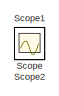
[diagram: root canvas - part 1/2, top left region]
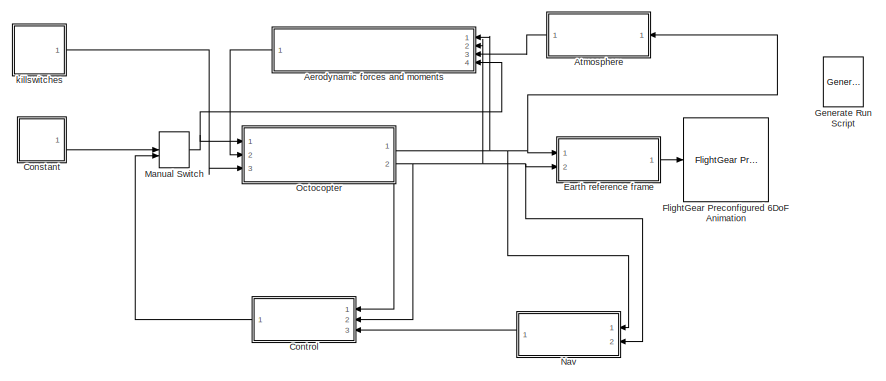
[diagram: root canvas - part 2/2, bottom right region]
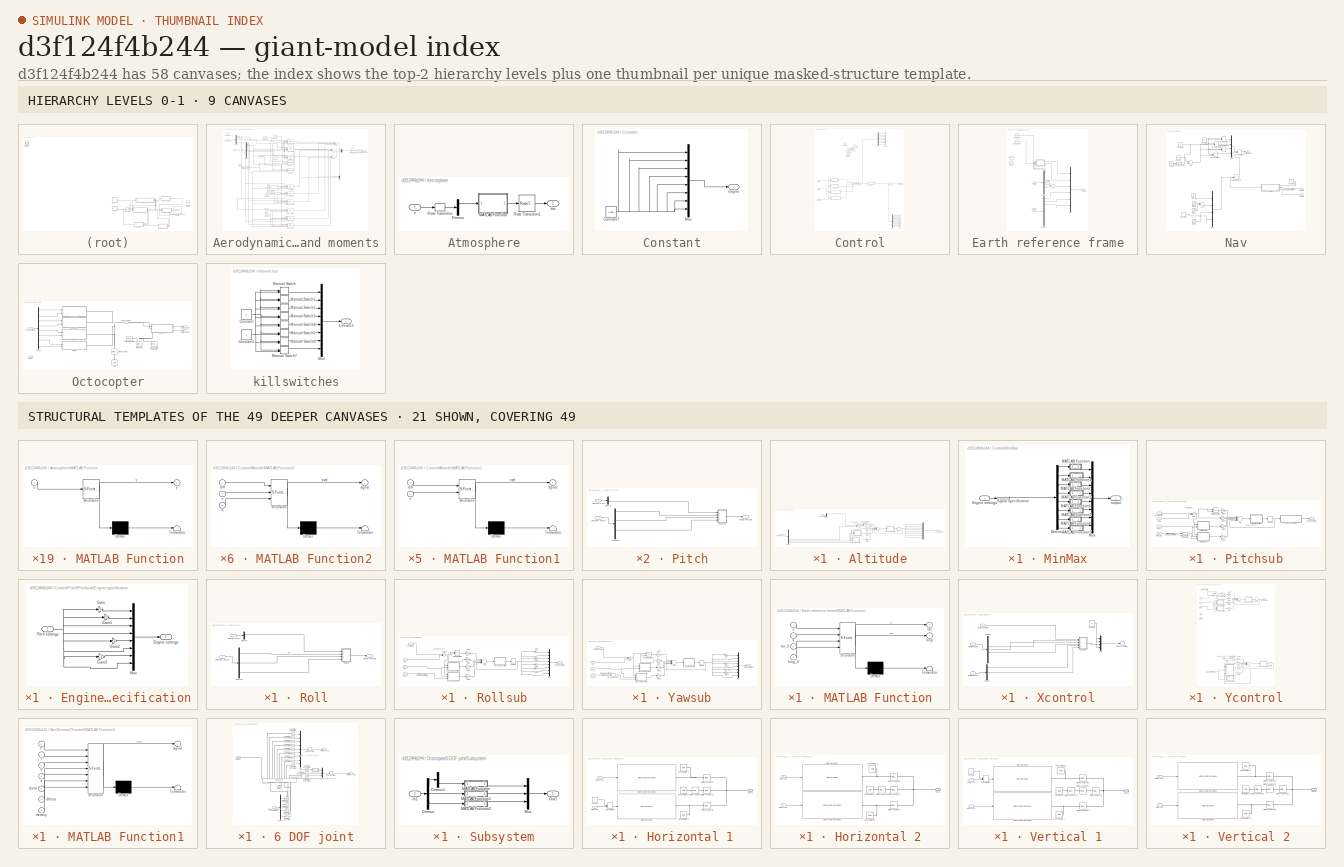
[diagram: thumbnail index - top-2 hierarchy levels (9 canvases) + 21 structural-template representatives of the remaining 49 canvases]
MODEL slx_d3f124f4b244
KIND model
CONFIG AbsTol = auto
CONFIG FixedStep = .01
CONFIG MaxStep = 10
CONFIG MinStep = auto
CONFIG RelTol = 1e-3
CONFIG SampleTimeConstraint = Unconstrained
CONFIG Solver = FixedStepAuto
CONFIG SolverMode = Auto
CONFIG SolverName = FixedStepAuto
CONFIG StartTime = 0.0
CONFIG StopTime = 500
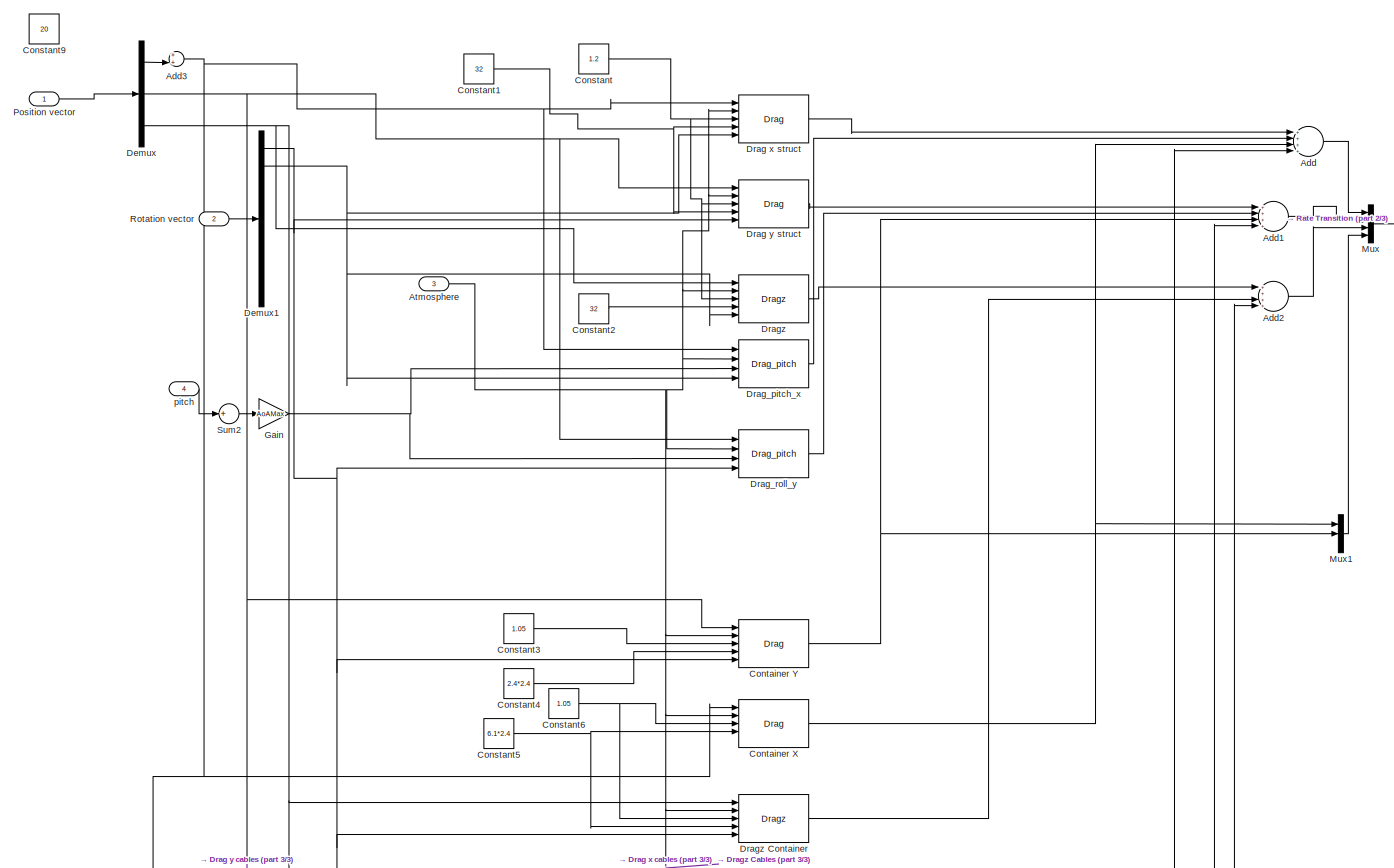
[diagram: Aerodynamic forces and moments - part 1/3, most of the canvas]
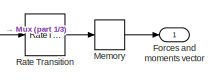
[diagram: Aerodynamic forces and moments - part 2/3, top right region]
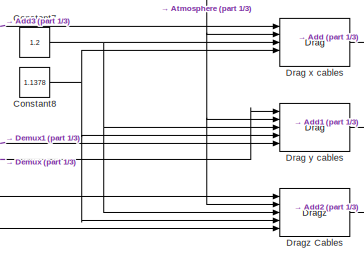
[diagram: Aerodynamic forces and moments - part 3/3, bottom center region]
BLOCK [SubSystem] Aerodynamic forces and moments
  Ports = [4, 1]
  RequestExecContextInheritance = off
  Variant = off
BLOCK [Sum] Aerodynamic forces and moments/Add
  InputSameDT = off
  Inputs = ++++
  OutDataTypeStr = Inherit: Inherit via internal rule
  Ports = [4, 1]
  SaturateOnIntegerOverflow = off
BLOCK [Sum] Aerodynamic forces and moments/Add1
  InputSameDT = off
  Inputs = ++++
  OutDataTypeStr = Inherit: Inherit via internal rule
  Ports = [4, 1]
  SaturateOnIntegerOverflow = off
BLOCK [Sum] Aerodynamic forces and moments/Add2
  InputSameDT = off
  Inputs = ++++
  OutDataTypeStr = Inherit: Inherit via internal rule
  Ports = [4, 1]
  SaturateOnIntegerOverflow = off
BLOCK [Sum] Aerodynamic forces and moments/Add3
  InputSameDT = off
  OutDataTypeStr = Inherit: Inherit via internal rule
  Ports = [2, 1]
  SaturateOnIntegerOverflow = off
BLOCK [Inport] Aerodynamic forces and moments/Atmosphere
  IconDisplay = Port number
  Port = 3
BLOCK [Constant] Aerodynamic forces and moments/Constant
  SampleTime = 1
  Value = 1.2
BLOCK [Constant] Aerodynamic forces and moments/Constant1
  SampleTime = 1
  Value = 32
BLOCK [Constant] Aerodynamic forces and moments/Constant2
  SampleTime = 1
  Value = 32
BLOCK [Constant] Aerodynamic forces and moments/Constant3
  SampleTime = 1
  Value = 1.05
BLOCK [Constant] Aerodynamic forces and moments/Constant4
  SampleTime = 1
  Value = 2.4*2.4
BLOCK [Constant] Aerodynamic forces and moments/Constant5
  SampleTime = 1
  Value = 6.1*2.4
BLOCK [Constant] Aerodynamic forces and moments/Constant6
  SampleTime = 1
  Value = 1.05
BLOCK [Constant] Aerodynamic forces and moments/Constant7
  SampleTime = 1
  Value = 1.2
BLOCK [Constant] Aerodynamic forces and moments/Constant8
  SampleTime = 1
  Value = 1.1378
BLOCK [Constant] Aerodynamic forces and moments/Constant9
  Value = 20
BLOCK [Reference] Aerodynamic forces and moments/Container X  REF=Library_Octocopter/Drag
  Ports = [5, 1]
  SourceBlock = Library_Octocopter/Drag
  SourceType = SubSystem
BLOCK [Reference] Aerodynamic forces and moments/Container Y  REF=Library_Octocopter/Drag
  Ports = [5, 1]
  SourceBlock = Library_Octocopter/Drag
  SourceType = SubSystem
BLOCK [Demux] Aerodynamic forces and moments/Demux
  DisplayOption = bar
  Outputs = 9
  Ports = [1, 9]
BLOCK [Demux] Aerodynamic forces and moments/Demux1
  DisplayOption = bar
  Outputs = 9
  Ports = [1, 9]
BLOCK [Reference] Aerodynamic forces and moments/Drag x cables  REF=Library_Octocopter/Drag
  Ports = [5, 1]
  SourceBlock = Library_Octocopter/Drag
  SourceType = SubSystem
BLOCK [Reference] Aerodynamic forces and moments/Drag x struct  REF=Library_Octocopter/Drag
  Ports = [5, 1]
  SourceBlock = Library_Octocopter/Drag
  SourceType = SubSystem
BLOCK [Reference] Aerodynamic forces and moments/Drag y cables  REF=Library_Octocopter/Drag
  Ports = [5, 1]
  SourceBlock = Library_Octocopter/Drag
  SourceType = SubSystem
BLOCK [Reference] Aerodynamic forces and moments/Drag y struct  REF=Library_Octocopter/Drag
  Ports = [5, 1]
  SourceBlock = Library_Octocopter/Drag
  SourceType = SubSystem
BLOCK [Reference] Aerodynamic forces and moments/Drag_pitch_x  REF=Library_Octocopter/Drag_pitch
  Ports = [4, 1]
  SourceBlock = Library_Octocopter/Drag_pitch
  SourceType = SubSystem
BLOCK [Reference] Aerodynamic forces and moments/Drag_roll_y  REF=Library_Octocopter/Drag_pitch
  Ports = [4, 1]
  SourceBlock = Library_Octocopter/Drag_pitch
  SourceType = SubSystem
BLOCK [Reference] Aerodynamic forces and moments/Dragz   REF=Library_Octocopter/Dragz

  Ports = [5, 1]
  SourceBlock = Library_Octocopter/Dragz
  SourceType = SubSystem
BLOCK [Reference] Aerodynamic forces and moments/Dragz Cables  REF=Library_Octocopter/Dragz

  Ports = [5, 1]
  SourceBlock = Library_Octocopter/Dragz
  SourceType = SubSystem
BLOCK [Reference] Aerodynamic forces and moments/Dragz Container  REF=Library_Octocopter/Dragz

  Ports = [5, 1]
  SourceBlock = Library_Octocopter/Dragz
  SourceType = SubSystem
BLOCK [Outport] Aerodynamic forces and moments/Forces and  moments vector
  IconDisplay = Port number
BLOCK [Gain] Aerodynamic forces and moments/Gain
  Gain = AoAMax
  OutDataTypeStr = Inherit: Inherit via internal rule
  ParamDataTypeStr = Inherit: Inherit via internal rule
  SaturateOnIntegerOverflow = off
BLOCK [Memory] Aerodynamic forces and moments/Memory
  InheritSampleTime = on
  LinearizeAsDelay = on
  LinearizeMemory = on
BLOCK [Mux] Aerodynamic forces and moments/Mux
  DisplayOption = bar
  Ports = [4, 1]
BLOCK [Mux] Aerodynamic forces and moments/Mux1
  DisplayOption = bar
  Inputs = 3
  Ports = [3, 1]
BLOCK [Inport] Aerodynamic forces and moments/Position vector
  IconDisplay = Port number
BLOCK [RateTransition] Aerodynamic forces and moments/Rate Transition
  OutPortSampleTimeOpt = Inherit
BLOCK [Inport] Aerodynamic forces and moments/Rotation vector
  IconDisplay = Port number
  Port = 2
BLOCK [Sum] Aerodynamic forces and moments/Sum2
  IconShape = round
  InputSameDT = off
  Inputs = +|
  OutDataTypeStr = Inherit: Inherit via internal rule
  Ports = [1, 1]
  SaturateOnIntegerOverflow = off
BLOCK [Inport] Aerodynamic forces and moments/pitch
  IconDisplay = Port number
  Port = 4
BLOCK [SubSystem] Atmosphere
  Ports = [1, 1]
  RequestExecContextInheritance = off
  Variant = off
BLOCK [Demux] Atmosphere/Demux
  DisplayOption = bar
  Outputs = 9
  Ports = [1, 9]
BLOCK [SubSystem] Atmosphere/MATLAB Function
  ErrorFcn = Stateflow.Translate.translate
  MinAlgLoopOccurrences = on
  PermitHierarchicalResolution = ExplicitOnly
  Ports = [1, 1]
  RequestExecContextInheritance = off
  SFBlockType = MATLAB Function
  SystemSampleTime = 10
  TreatAsAtomicUnit = on
  Variant = off
BLOCK [Demux] Atmosphere/MATLAB Function/ Demux 
  Outputs = 1
  Ports = [1, 1]
BLOCK [S-Function] Atmosphere/MATLAB Function/ SFunction 
  EnableBusSupport = on
  FunctionName = sf_sfun
  PortCounts = [1 2]
  Ports = [1, 2]
  SFunctionDeploymentMode = off
  Tag = Stateflow S-Function DuoCopter1AGRESSIVE_Uncollapsed 16
BLOCK [Terminator] Atmosphere/MATLAB Function/ Terminator 
BLOCK [Inport] Atmosphere/MATLAB Function/u
  IconDisplay = Port number
BLOCK [Outport] Atmosphere/MATLAB Function/y
  IconDisplay = Port number
BLOCK [RateTransition] Atmosphere/Rate Transition
  OutPortSampleTime = 10
  X0 = 1.225
BLOCK [RateTransition] Atmosphere/Rate Transition1
  X0 = 1.225
BLOCK [Outport] Atmosphere/rho
  IconDisplay = Port number
BLOCK [Inport] Atmosphere/z
  IconDisplay = Port number
BLOCK [SubSystem] Constant
  Ports = [0, 1]
  RequestExecContextInheritance = off
  Variant = off
BLOCK [Constant] Constant/Constant7
  Value = 0.835
BLOCK [Mux] Constant/Mux
  DisplayOption = bar
  Inputs = 8
  Ports = [8, 1]
BLOCK [Outport] Constant/engine
  IconDisplay = Port number
BLOCK [SubSystem] Control
  Ports = [3, 1]
  RequestExecContextInheritance = off
  Variant = off
BLOCK [Sum] Control/Add
  InputSameDT = off
  Inputs = ++++
  OutDataTypeStr = Inherit: Inherit via internal rule
  Ports = [4, 1]
  SaturateOnIntegerOverflow = off
BLOCK [Sum] Control/Add1
  InputSameDT = off
  Inputs = ++++
  OutDataTypeStr = Inherit: Inherit via internal rule
  Ports = [4, 1]
  SaturateOnIntegerOverflow = off
BLOCK [SubSystem] Control/Altitude
  Ports = [2, 1]
  RequestExecContextInheritance = off
  Variant = off
BLOCK [Sum] Control/Altitude/Add
  InputSameDT = off
  Inputs = +++++
  OutDataTypeStr = Inherit: Inherit via internal rule
  Ports = [5, 1]
  SaturateOnIntegerOverflow = off
BLOCK [Demux] Control/Altitude/Demux
  DisplayOption = bar
  Ports = [1, 4]
BLOCK [Demux] Control/Altitude/Demux2
  DisplayOption = bar
  Outputs = 9
  Ports = [1, 9]
BLOCK [Inport] Control/Altitude/Desired state
  IconDisplay = Port number
BLOCK [Outport] Control/Altitude/Engine settings
  IconDisplay = Port number
BLOCK [Gain] Control/Altitude/Gain4
  Gain = .00004
  OutDataTypeStr = Inherit: Inherit via internal rule
  ParamDataTypeStr = Inherit: Inherit via internal rule
  SaturateOnIntegerOverflow = off
BLOCK [Gain] Control/Altitude/Gain5
  Gain = -0.0002
  Multiplication = Matrix(u*K)
  OutDataTypeStr = Inherit: Inherit via internal rule
  ParamDataTypeStr = Inherit: Inherit via internal rule
  SaturateOnIntegerOverflow = off
BLOCK [Gain] Control/Altitude/Gain6
  Gain = -0.002
  OutDataTypeStr = Inherit: Inherit via internal rule
  ParamDataTypeStr = Inherit: Inherit via internal rule
  SaturateOnIntegerOverflow = off
BLOCK [Gain] Control/Altitude/Gain7
  Gain = .00002
  OutDataTypeStr = Inherit: Inherit via internal rule
  ParamDataTypeStr = Inherit: Inherit via internal rule
  SaturateOnIntegerOverflow = off
BLOCK [Integrator] Control/Altitude/Integrator Limited
  ExternalReset = either
  LimitOutput = on
  LowerSaturationLimit = -100
  Ports = [2, 1]
  UpperSaturationLimit = 100
BLOCK [SubSystem] Control/Altitude/MATLAB Function
  ErrorFcn = Stateflow.Translate.translate
  PermitHierarchicalResolution = ExplicitOnly
  Ports = [1, 1]
  RequestExecContextInheritance = off
  SFBlockType = MATLAB Function
  TreatAsAtomicUnit = on
  Variant = off
BLOCK [Demux] Control/Altitude/MATLAB Function/ Demux 
  Outputs = 1
  Ports = [1, 1]
BLOCK [S-Function] Control/Altitude/MATLAB Function/ SFunction 
  EnableBusSupport = on
  FunctionName = sf_sfun
  PortCounts = [1 2]
  Ports = [1, 2]
  SFunctionDeploymentMode = off
  Tag = Stateflow S-Function DuoCopter1AGRESSIVE_Uncollapsed 2
BLOCK [Terminator] Control/Altitude/MATLAB Function/ Terminator 
BLOCK [Inport] Control/Altitude/MATLAB Function/input
  IconDisplay = Port number
BLOCK [Outport] Control/Altitude/MATLAB Function/output
  IconDisplay = Port number
BLOCK [SubSystem] Control/Altitude/MATLAB Function1
  ErrorFcn = Stateflow.Translate.translate
  PermitHierarchicalResolution = ExplicitOnly
  Ports = [2, 1]
  RequestExecContextInheritance = off
  SFBlockType = MATLAB Function
  TreatAsAtomicUnit = on
  Variant = off
BLOCK [Demux] Control/Altitude/MATLAB Function1/ Demux 
  Outputs = 1
  Ports = [1, 1]
BLOCK [S-Function] Control/Altitude/MATLAB Function1/ SFunction 
  EnableBusSupport = on
  FunctionName = sf_sfun
  PortCounts = [2 2]
  Ports = [2, 2]
  SFunctionDeploymentMode = off
  Tag = Stateflow S-Function DuoCopter1AGRESSIVE_Uncollapsed 17
BLOCK [Terminator] Control/Altitude/MATLAB Function1/ Terminator 
BLOCK [Inport] Control/Altitude/MATLAB Function1/diff
  IconDisplay = Port number
BLOCK [Outport] Control/Altitude/MATLAB Function1/signal
  IconDisplay = Port number
BLOCK [Inport] Control/Altitude/MATLAB Function1/v
  IconDisplay = Port number
  Port = 2
BLOCK [SubSystem] Control/Altitude/MATLAB Function2
  ErrorFcn = Stateflow.Translate.translate
  PermitHierarchicalResolution = ExplicitOnly
  Ports = [3, 1]
  RequestExecContextInheritance = off
  SFBlockType = MATLAB Function
  TreatAsAtomicUnit = on
  Variant = off
BLOCK [Demux] Control/Altitude/MATLAB Function2/ Demux 
  Outputs = 1
  Ports = [1, 1]
BLOCK [S-Function] Control/Altitude/MATLAB Function2/ SFunction 
  EnableBusSupport = on
  FunctionName = sf_sfun
  PortCounts = [3 2]
  Ports = [3, 2]
  SFunctionDeploymentMode = off
  Tag = Stateflow S-Function DuoCopter1AGRESSIVE_Uncollapsed 18
BLOCK [Terminator] Control/Altitude/MATLAB Function2/ Terminator 
BLOCK [Inport] Control/Altitude/MATLAB Function2/a
  IconDisplay = Port number
  Port = 3
BLOCK [Inport] Control/Altitude/MATLAB Function2/diff
  IconDisplay = Port number
BLOCK [Outport] Control/Altitude/MATLAB Function2/signal
  IconDisplay = Port number
BLOCK [Inport] Control/Altitude/MATLAB Function2/v
  IconDisplay = Port number
  Port = 2
BLOCK [Memory] Control/Altitude/Memory
  LinearizeAsDelay = on
  X0 = 0.84
BLOCK [Mux] Control/Altitude/Mux
  DisplayOption = bar
  Inputs = 8
  Ports = [8, 1]
BLOCK [Inport] Control/Altitude/Position Vector
  IconDisplay = Port number
  Port = 2
BLOCK [Sum] Control/Altitude/Subtract
  InputSameDT = off
  Inputs = +-
  OutDataTypeStr = Inherit: Inherit via internal rule
  Ports = [2, 1]
  SaturateOnIntegerOverflow = off
BLOCK [Constant] Control/Constant
  Value = 0.64
BLOCK [Constant] Control/Constant1
  Value = 0.77
BLOCK [Demux] Control/Demux
  DisplayOption = bar
  Outputs = 8
  Ports = [1, 8]
BLOCK [Demux] Control/Demux2
  DisplayOption = bar
  Outputs = 8
  Ports = [1, 8]
BLOCK [Outport] Control/Engine settings
  IconDisplay = Port number
BLOCK [ManualSwitch] Control/Manual Switch
BLOCK [Memory] Control/Memory
  InheritSampleTime = on
  LinearizeAsDelay = on
  LinearizeMemory = on
  X0 = 0.84
BLOCK [SubSystem] Control/MinMax
  Ports = [1, 1]
  RequestExecContextInheritance = off
  Variant = off
BLOCK [Demux] Control/MinMax/Demux1
  DisplayOption = bar
  Outputs = 8
  Ports = [1, 8]
BLOCK [Inport] Control/MinMax/Engine settings
  IconDisplay = Port number
BLOCK [SubSystem] Control/MinMax/MATLAB Function
  ErrorFcn = Stateflow.Translate.translate
  PermitHierarchicalResolution = ExplicitOnly
  Ports = [1, 1]
  RequestExecContextInheritance = off
  SFBlockType = MATLAB Function
  TreatAsAtomicUnit = on
  Variant = off
BLOCK [Demux] Control/MinMax/MATLAB Function/ Demux 
  Outputs = 1
  Ports = [1, 1]
BLOCK [S-Function] Control/MinMax/MATLAB Function/ SFunction 
  EnableBusSupport = on
  FunctionName = sf_sfun
  PortCounts = [1 2]
  Ports = [1, 2]
  SFunctionDeploymentMode = off
  Tag = Stateflow S-Function DuoCopter1AGRESSIVE_Uncollapsed 5
BLOCK [Terminator] Control/MinMax/MATLAB Function/ Terminator 
BLOCK [Inport] Control/MinMax/MATLAB Function/input
  IconDisplay = Port number
BLOCK [Outport] Control/MinMax/MATLAB Function/output
  IconDisplay = Port number
BLOCK [SubSystem] Control/MinMax/MATLAB Function1
  ErrorFcn = Stateflow.Translate.translate
  PermitHierarchicalResolution = ExplicitOnly
  Ports = [1, 1]
  RequestExecContextInheritance = off
  SFBlockType = MATLAB Function
  TreatAsAtomicUnit = on
  Variant = off
BLOCK [Demux] Control/MinMax/MATLAB Function1/ Demux 
  Outputs = 1
  Ports = [1, 1]
BLOCK [S-Function] Control/MinMax/MATLAB Function1/ SFunction 
  EnableBusSupport = on
  FunctionName = sf_sfun
  PortCounts = [1 2]
  Ports = [1, 2]
  SFunctionDeploymentMode = off
  Tag = Stateflow S-Function DuoCopter1AGRESSIVE_Uncollapsed 6
BLOCK [Terminator] Control/MinMax/MATLAB Function1/ Terminator 
BLOCK [Inport] Control/MinMax/MATLAB Function1/input
  IconDisplay = Port number
BLOCK [Outport] Control/MinMax/MATLAB Function1/output
  IconDisplay = Port number
BLOCK [SubSystem] Control/MinMax/MATLAB Function2
  ErrorFcn = Stateflow.Translate.translate
  PermitHierarchicalResolution = ExplicitOnly
  Ports = [1, 1]
  RequestExecContextInheritance = off
  SFBlockType = MATLAB Function
  TreatAsAtomicUnit = on
  Variant = off
BLOCK [Demux] Control/MinMax/MATLAB Function2/ Demux 
  Outputs = 1
  Ports = [1, 1]
BLOCK [S-Function] Control/MinMax/MATLAB Function2/ SFunction 
  EnableBusSupport = on
  FunctionName = sf_sfun
  PortCounts = [1 2]
  Ports = [1, 2]
  SFunctionDeploymentMode = off
  Tag = Stateflow S-Function DuoCopter1AGRESSIVE_Uncollapsed 7
BLOCK [Terminator] Control/MinMax/MATLAB Function2/ Terminator 
BLOCK [Inport] Control/MinMax/MATLAB Function2/input
  IconDisplay = Port number
BLOCK [Outport] Control/MinMax/MATLAB Function2/output
  IconDisplay = Port number
BLOCK [SubSystem] Control/MinMax/MATLAB Function3
  ErrorFcn = Stateflow.Translate.translate
  PermitHierarchicalResolution = ExplicitOnly
  Ports = [1, 1]
  RequestExecContextInheritance = off
  SFBlockType = MATLAB Function
  TreatAsAtomicUnit = on
  Variant = off
BLOCK [Demux] Control/MinMax/MATLAB Function3/ Demux 
  Outputs = 1
  Ports = [1, 1]
BLOCK [S-Function] Control/MinMax/MATLAB Function3/ SFunction 
  EnableBusSupport = on
  FunctionName = sf_sfun
  PortCounts = [1 2]
  Ports = [1, 2]
  SFunctionDeploymentMode = off
  Tag = Stateflow S-Function DuoCopter1AGRESSIVE_Uncollapsed 8
BLOCK [Terminator] Control/MinMax/MATLAB Function3/ Terminator 
BLOCK [Inport] Control/MinMax/MATLAB Function3/input
  IconDisplay = Port number
BLOCK [Outport] Control/MinMax/MATLAB Function3/output
  IconDisplay = Port number
BLOCK [SubSystem] Control/MinMax/MATLAB Function4
  ErrorFcn = Stateflow.Translate.translate
  PermitHierarchicalResolution = ExplicitOnly
  Ports = [1, 1]
  RequestExecContextInheritance = off
  SFBlockType = MATLAB Function
  TreatAsAtomicUnit = on
  Variant = off
BLOCK [Demux] Control/MinMax/MATLAB Function4/ Demux 
  Outputs = 1
  Ports = [1, 1]
BLOCK [S-Function] Control/MinMax/MATLAB Function4/ SFunction 
  EnableBusSupport = on
  FunctionName = sf_sfun
  PortCounts = [1 2]
  Ports = [1, 2]
  SFunctionDeploymentMode = off
  Tag = Stateflow S-Function DuoCopter1AGRESSIVE_Uncollapsed 9
BLOCK [Terminator] Control/MinMax/MATLAB Function4/ Terminator 
BLOCK [Inport] Control/MinMax/MATLAB Function4/input
  IconDisplay = Port number
BLOCK [Outport] Control/MinMax/MATLAB Function4/output
  IconDisplay = Port number
BLOCK [SubSystem] Control/MinMax/MATLAB Function5
  ErrorFcn = Stateflow.Translate.translate
  PermitHierarchicalResolution = ExplicitOnly
  Ports = [1, 1]
  RequestExecContextInheritance = off
  SFBlockType = MATLAB Function
  TreatAsAtomicUnit = on
  Variant = off
BLOCK [Demux] Control/MinMax/MATLAB Function5/ Demux 
  Outputs = 1
  Ports = [1, 1]
BLOCK [S-Function] Control/MinMax/MATLAB Function5/ SFunction 
  EnableBusSupport = on
  FunctionName = sf_sfun
  PortCounts = [1 2]
  Ports = [1, 2]
  SFunctionDeploymentMode = off
  Tag = Stateflow S-Function DuoCopter1AGRESSIVE_Uncollapsed 10
BLOCK [Terminator] Control/MinMax/MATLAB Function5/ Terminator 
BLOCK [Inport] Control/MinMax/MATLAB Function5/input
  IconDisplay = Port number
BLOCK [Outport] Control/MinMax/MATLAB Function5/output
  IconDisplay = Port number
BLOCK [SubSystem] Control/MinMax/MATLAB Function6
  ErrorFcn = Stateflow.Translate.translate
  PermitHierarchicalResolution = ExplicitOnly
  Ports = [1, 1]
  RequestExecContextInheritance = off
  SFBlockType = MATLAB Function
  TreatAsAtomicUnit = on
  Variant = off
BLOCK [Demux] Control/MinMax/MATLAB Function6/ Demux 
  Outputs = 1
  Ports = [1, 1]
BLOCK [S-Function] Control/MinMax/MATLAB Function6/ SFunction 
  EnableBusSupport = on
  FunctionName = sf_sfun
  PortCounts = [1 2]
  Ports = [1, 2]
  SFunctionDeploymentMode = off
  Tag = Stateflow S-Function DuoCopter1AGRESSIVE_Uncollapsed 11
BLOCK [Terminator] Control/MinMax/MATLAB Function6/ Terminator 
BLOCK [Inport] Control/MinMax/MATLAB Function6/input
  IconDisplay = Port number
BLOCK [Outport] Control/MinMax/MATLAB Function6/output
  IconDisplay = Port number
BLOCK [SubSystem] Control/MinMax/MATLAB Function7
  ErrorFcn = Stateflow.Translate.translate
  PermitHierarchicalResolution = ExplicitOnly
  Ports = [1, 1]
  RequestExecContextInheritance = off
  SFBlockType = MATLAB Function
  TreatAsAtomicUnit = on
  Variant = off
BLOCK [Demux] Control/MinMax/MATLAB Function7/ Demux 
  Outputs = 1
  Ports = [1, 1]
BLOCK [S-Function] Control/MinMax/MATLAB Function7/ SFunction 
  EnableBusSupport = on
  FunctionName = sf_sfun
  PortCounts = [1 2]
  Ports = [1, 2]
  SFunctionDeploymentMode = off
  Tag = Stateflow S-Function DuoCopter1AGRESSIVE_Uncollapsed 12
BLOCK [Terminator] Control/MinMax/MATLAB Function7/ Terminator 
BLOCK [Inport] Control/MinMax/MATLAB Function7/input
  IconDisplay = Port number
BLOCK [Outport] Control/MinMax/MATLAB Function7/output
  IconDisplay = Port number
BLOCK [Mux] Control/MinMax/Mux
  DisplayOption = bar
  Inputs = 8
  Ports = [8, 1]
BLOCK [SignalSpecification] Control/MinMax/Signal Specification
  Dimensions = 8
BLOCK [Outport] Control/MinMax/output
  IconDisplay = Port number
BLOCK [SubSystem] Control/Pitch
  Ports = [2, 1]
  RequestExecContextInheritance = off
  Variant = off
BLOCK [Demux] Control/Pitch/Demux
  DisplayOption = bar
  Ports = [1, 4]
BLOCK [Demux] Control/Pitch/Demux2
  DisplayOption = bar
  Outputs = 9
  Ports = [1, 9]
BLOCK [Inport] Control/Pitch/Desired state
  IconDisplay = Port number
BLOCK [Outport] Control/Pitch/Engine settings
  IconDisplay = Port number
BLOCK [SubSystem] Control/Pitch/Pitchsub
  Ports = [4, 1]
  RequestExecContextInheritance = off
  Variant = off
BLOCK [Sum] Control/Pitch/Pitchsub/Add
  InputSameDT = off
  Inputs = +++++
  OutDataTypeStr = Inherit: Inherit via internal rule
  Ports = [5, 1]
  SaturateOnIntegerOverflow = off
BLOCK [Outport] Control/Pitch/Pitchsub/Engine settings
  IconDisplay = Port number
BLOCK [SubSystem] Control/Pitch/Pitchsub/Engine specification
  Ports = [1, 1]
  RequestExecContextInheritance = off
  Variant = off
BLOCK [Outport] Control/Pitch/Pitchsub/Engine specification/Engine settings
  IconDisplay = Port number
BLOCK [Gain] Control/Pitch/Pitchsub/Engine specification/Gain
  Gain = -1
  OutDataTypeStr = Inherit: Inherit via internal rule
  ParamDataTypeStr = Inherit: Inherit via internal rule
  SaturateOnIntegerOverflow = off
BLOCK [Gain] Control/Pitch/Pitchsub/Engine specification/Gain1
  Gain = -1
  OutDataTypeStr = Inherit: Inherit via internal rule
  ParamDataTypeStr = Inherit: Inherit via internal rule
  SaturateOnIntegerOverflow = off
BLOCK [Gain] Control/Pitch/Pitchsub/Engine specification/Gain2
  Gain = -1
  OutDataTypeStr = Inherit: Inherit via internal rule
  ParamDataTypeStr = Inherit: Inherit via internal rule
  SaturateOnIntegerOverflow = off
BLOCK [Gain] Control/Pitch/Pitchsub/Engine specification/Gain3
  Gain = -1
  OutDataTypeStr = Inherit: Inherit via internal rule
  ParamDataTypeStr = Inherit: Inherit via internal rule
  SaturateOnIntegerOverflow = off
BLOCK [Mux] Control/Pitch/Pitchsub/Engine specification/Mux
  DisplayOption = bar
  Inputs = 8
  Ports = [8, 1]
BLOCK [Inport] Control/Pitch/Pitchsub/Engine specification/Pitch settings
  IconDisplay = Port number
BLOCK [Sum] Control/Pitch/Pitchsub/Error
  InputSameDT = off
  Inputs = +-
  OutDataTypeStr = Inherit: Inherit via internal rule
  Ports = [2, 1]
  SaturateOnIntegerOverflow = off
BLOCK [Gain] Control/Pitch/Pitchsub/Gain4
  Gain = -0.01
  OutDataTypeStr = Inherit: Inherit via internal rule
  ParamDataTypeStr = Inherit: Inherit via internal rule
  SaturateOnIntegerOverflow = off
BLOCK [Gain] Control/Pitch/Pitchsub/Gain5
  Gain = .015
  OutDataTypeStr = Inherit: Inherit via internal rule
  ParamDataTypeStr = Inherit: Inherit via internal rule
  SaturateOnIntegerOverflow = off
BLOCK [Gain] Control/Pitch/Pitchsub/Gain6
  Gain = 0.03
  OutDataTypeStr = Inherit: Inherit via internal rule
  ParamDataTypeStr = Inherit: Inherit via internal rule
  SaturateOnIntegerOverflow = off
BLOCK [Gain] Control/Pitch/Pitchsub/Gain7
  Gain = -0.00002
  OutDataTypeStr = Inherit: Inherit via internal rule
  ParamDataTypeStr = Inherit: Inherit via internal rule
  SaturateOnIntegerOverflow = off
BLOCK [Integrator] Control/Pitch/Pitchsub/Integrator Limited
  ExternalReset = either
  LimitOutput = on
  LowerSaturationLimit = -1
  Ports = [2, 1]
  UpperSaturationLimit = 1
BLOCK [SubSystem] Control/Pitch/Pitchsub/Max//Min algorithm
  ErrorFcn = Stateflow.Translate.translate
  PermitHierarchicalResolution = ExplicitOnly
  Ports = [1, 1]
  RequestExecContextInheritance = off
  SFBlockType = MATLAB Function
  TreatAsAtomicUnit = on
  Variant = off
BLOCK [Demux] Control/Pitch/Pitchsub/Max//Min algorithm/ Demux 
  Outputs = 1
  Ports = [1, 1]
BLOCK [S-Function] Control/Pitch/Pitchsub/Max//Min algorithm/ SFunction 
  EnableBusSupport = on
  FunctionName = sf_sfun
  PortCounts = [1 2]
  Ports = [1, 2]
  SFunctionDeploymentMode = off
  Tag = Stateflow S-Function DuoCopter1AGRESSIVE_Uncollapsed 3
BLOCK [Terminator] Control/Pitch/Pitchsub/Max//Min algorithm/ Terminator 
BLOCK [Inport] Control/Pitch/Pitchsub/Max//Min algorithm/input
  IconDisplay = Port number
BLOCK [Outport] Control/Pitch/Pitchsub/Max//Min algorithm/output
  IconDisplay = Port number
BLOCK [MATLABSystem] Control/Pitch/Pitchsub/Measurement smoother
  MaskDisplay = disp('moving_average');\nport_label('input',1,'X');\nport_label('output',1,'Y');
  MaskType = moving_average
  Ports = [1, 1]
  SimulateUsing = Interpreted execution
  System = moving_average
  WindowLength = 1
BLOCK [Memory] Control/Pitch/Pitchsub/Memory
  InheritSampleTime = on
  LinearizeAsDelay = on
BLOCK [SignalSpecification] Control/Pitch/Pitchsub/Signal Specification
  Dimensions = 1
BLOCK [SubSystem] Control/Pitch/Pitchsub/Variable Gain
  ErrorFcn = Stateflow.Translate.translate
  PermitHierarchicalResolution = ExplicitOnly
  Ports = [2, 1]
  RequestExecContextInheritance = off
  SFBlockType = MATLAB Function
  TreatAsAtomicUnit = on
  Variant = off
BLOCK [Demux] Control/Pitch/Pitchsub/Variable Gain/ Demux 
  Outputs = 1
  Ports = [1, 1]
BLOCK [S-Function] Control/Pitch/Pitchsub/Variable Gain/ SFunction 
  EnableBusSupport = on
  FunctionName = sf_sfun
  PortCounts = [2 2]
  Ports = [2, 2]
  SFunctionDeploymentMode = off
  Tag = Stateflow S-Function DuoCopter1AGRESSIVE_Uncollapsed 20
BLOCK [Terminator] Control/Pitch/Pitchsub/Variable Gain/ Terminator 
BLOCK [Inport] Control/Pitch/Pitchsub/Variable Gain/diff
  IconDisplay = Port number
BLOCK [Outport] Control/Pitch/Pitchsub/Variable Gain/signal
  IconDisplay = Port number
BLOCK [Inport] Control/Pitch/Pitchsub/Variable Gain/v
  IconDisplay = Port number
  Port = 2
BLOCK [SubSystem] Control/Pitch/Pitchsub/Variable gain
  ErrorFcn = Stateflow.Translate.translate
  PermitHierarchicalResolution = ExplicitOnly
  Ports = [3, 1]
  RequestExecContextInheritance = off
  SFBlockType = MATLAB Function
  TreatAsAtomicUnit = on
  Variant = off
BLOCK [Demux] Control/Pitch/Pitchsub/Variable gain/ Demux 
  Outputs = 1
  Ports = [1, 1]
BLOCK [S-Function] Control/Pitch/Pitchsub/Variable gain/ SFunction 
  EnableBusSupport = on
  FunctionName = sf_sfun
  PortCounts = [3 2]
  Ports = [3, 2]
  SFunctionDeploymentMode = off
  Tag = Stateflow S-Function DuoCopter1AGRESSIVE_Uncollapsed 24
BLOCK [Terminator] Control/Pitch/Pitchsub/Variable gain/ Terminator 
BLOCK [Inport] Control/Pitch/Pitchsub/Variable gain/a
  IconDisplay = Port number
  Port = 3
BLOCK [Inport] Control/Pitch/Pitchsub/Variable gain/diff
  IconDisplay = Port number
BLOCK [Outport] Control/Pitch/Pitchsub/Variable gain/signal
  IconDisplay = Port number
BLOCK [Inport] Control/Pitch/Pitchsub/Variable gain/v
  IconDisplay = Port number
  Port = 2
BLOCK [Inport] Control/Pitch/Pitchsub/desired pitch
  IconDisplay = Port number
BLOCK [Inport] Control/Pitch/Pitchsub/theta
  IconDisplay = Port number
  Port = 2
BLOCK [Inport] Control/Pitch/Pitchsub/theta_d
  IconDisplay = Port number
  Port = 3
BLOCK [Inport] Control/Pitch/Pitchsub/theta_dd
  IconDisplay = Port number
  Port = 4
BLOCK [Inport] Control/Pitch/Rotation Vector
  IconDisplay = Port number
  Port = 2
BLOCK [Reference] Control/Ramp  REF=simulink/Sources/Ramp
  Ports = [0, 1]
  SourceBlock = simulink/Sources/Ramp
  SourceType = Ramp
BLOCK [Reference] Control/Ramp1  REF=simulink/Sources/Ramp
  Ports = [0, 1]
  SourceBlock = simulink/Sources/Ramp
  SourceType = Ramp
BLOCK [SubSystem] Control/Roll
  Ports = [2, 1]
  RequestExecContextInheritance = off
  Variant = off
BLOCK [Demux] Control/Roll/Demux
  DisplayOption = bar
  Ports = [1, 4]
BLOCK [Demux] Control/Roll/Demux2
  DisplayOption = bar
  Outputs = 9
  Ports = [1, 9]
BLOCK [Inport] Control/Roll/Desired state
  IconDisplay = Port number
  Port = 2
BLOCK [Outport] Control/Roll/Engine settings
  IconDisplay = Port number
BLOCK [SubSystem] Control/Roll/Rollsub
  Ports = [4, 1]
  RequestExecContextInheritance = off
  Variant = off
BLOCK [Sum] Control/Roll/Rollsub/Add
  InputSameDT = off
  Inputs = +++++
  OutDataTypeStr = Inherit: Inherit via internal rule
  Ports = [5, 1]
  SaturateOnIntegerOverflow = off
BLOCK [Outport] Control/Roll/Rollsub/Engine settings
  IconDisplay = Port number
BLOCK [Gain] Control/Roll/Rollsub/Gain
  Gain = -1
  OutDataTypeStr = Inherit: Inherit via internal rule
  ParamDataTypeStr = Inherit: Inherit via internal rule
  SaturateOnIntegerOverflow = off
BLOCK [Gain] Control/Roll/Rollsub/Gain1
  Gain = -1
  OutDataTypeStr = Inherit: Inherit via internal rule
  ParamDataTypeStr = Inherit: Inherit via internal rule
  SaturateOnIntegerOverflow = off
BLOCK [Gain] Control/Roll/Rollsub/Gain2
  Gain = -1
  OutDataTypeStr = Inherit: Inherit via internal rule
  ParamDataTypeStr = Inherit: Inherit via internal rule
  SaturateOnIntegerOverflow = off
BLOCK [Gain] Control/Roll/Rollsub/Gain3
  Gain = -1
  OutDataTypeStr = Inherit: Inherit via internal rule
  ParamDataTypeStr = Inherit: Inherit via internal rule
  SaturateOnIntegerOverflow = off
BLOCK [Gain] Control/Roll/Rollsub/Gain4
  Gain = -6e-03
  OutDataTypeStr = Inherit: Inherit via internal rule
  ParamDataTypeStr = Inherit: Inherit via internal rule
  SaturateOnIntegerOverflow = off
BLOCK [Gain] Control/Roll/Rollsub/Gain5
  Gain = 0.015
  OutDataTypeStr = Inherit: Inherit via internal rule
  ParamDataTypeStr = Inherit: Inherit via internal rule
  SaturateOnIntegerOverflow = off
BLOCK [Gain] Control/Roll/Rollsub/Gain6
  Gain = 0.024
  OutDataTypeStr = Inherit: Inherit via internal rule
  ParamDataTypeStr = Inherit: Inherit via internal rule
  SaturateOnIntegerOverflow = off
BLOCK [Gain] Control/Roll/Rollsub/Gain7
  Gain = -4e-05
  OutDataTypeStr = Inherit: Inherit via internal rule
  ParamDataTypeStr = Inherit: Inherit via internal rule
  SaturateOnIntegerOverflow = off
BLOCK [Integrator] Control/Roll/Rollsub/Integrator Limited
  ExternalReset = either
  LimitOutput = on
  LowerSaturationLimit = -1
  Ports = [2, 1]
  UpperSaturationLimit = 1
BLOCK [SubSystem] Control/Roll/Rollsub/MATLAB Function
  ErrorFcn = Stateflow.Translate.translate
  PermitHierarchicalResolution = ExplicitOnly
  Ports = [1, 1]
  RequestExecContextInheritance = off
  SFBlockType = MATLAB Function
  TreatAsAtomicUnit = on
  Variant = off
BLOCK [Demux] Control/Roll/Rollsub/MATLAB Function/ Demux 
  Outputs = 1
  Ports = [1, 1]
BLOCK [S-Function] Control/Roll/Rollsub/MATLAB Function/ SFunction 
  EnableBusSupport = on
  FunctionName = sf_sfun
  PortCounts = [1 2]
  Ports = [1, 2]
  SFunctionDeploymentMode = off
  Tag = Stateflow S-Function DuoCopter1AGRESSIVE_Uncollapsed 4
BLOCK [Terminator] Control/Roll/Rollsub/MATLAB Function/ Terminator 
BLOCK [Inport] Control/Roll/Rollsub/MATLAB Function/input
  IconDisplay = Port number
BLOCK [Outport] Control/Roll/Rollsub/MATLAB Function/output
  IconDisplay = Port number
BLOCK [SubSystem] Control/Roll/Rollsub/MATLAB Function1
  ErrorFcn = Stateflow.Translate.translate
  PermitHierarchicalResolution = ExplicitOnly
  Ports = [2, 1]
  RequestExecContextInheritance = off
  SFBlockType = MATLAB Function
  TreatAsAtomicUnit = on
  Variant = off
BLOCK [Demux] Control/Roll/Rollsub/MATLAB Function1/ Demux 
  Outputs = 1
  Ports = [1, 1]
BLOCK [S-Function] Control/Roll/Rollsub/MATLAB Function1/ SFunction 
  EnableBusSupport = on
  FunctionName = sf_sfun
  PortCounts = [2 2]
  Ports = [2, 2]
  SFunctionDeploymentMode = off
  Tag = Stateflow S-Function DuoCopter1AGRESSIVE_Uncollapsed 21
BLOCK [Terminator] Control/Roll/Rollsub/MATLAB Function1/ Terminator 
BLOCK [Inport] Control/Roll/Rollsub/MATLAB Function1/diff
  IconDisplay = Port number
BLOCK [Outport] Control/Roll/Rollsub/MATLAB Function1/signal
  IconDisplay = Port number
BLOCK [Inport] Control/Roll/Rollsub/MATLAB Function1/v
  IconDisplay = Port number
  Port = 2
BLOCK [SubSystem] Control/Roll/Rollsub/MATLAB Function2
  ErrorFcn = Stateflow.Translate.translate
  PermitHierarchicalResolution = ExplicitOnly
  Ports = [3, 1]
  RequestExecContextInheritance = off
  SFBlockType = MATLAB Function
  TreatAsAtomicUnit = on
  Variant = off
BLOCK [Demux] Control/Roll/Rollsub/MATLAB Function2/ Demux 
  Outputs = 1
  Ports = [1, 1]
BLOCK [S-Function] Control/Roll/Rollsub/MATLAB Function2/ SFunction 
  EnableBusSupport = on
  FunctionName = sf_sfun
  PortCounts = [3 2]
  Ports = [3, 2]
  SFunctionDeploymentMode = off
  Tag = Stateflow S-Function DuoCopter1AGRESSIVE_Uncollapsed 25
BLOCK [Terminator] Control/Roll/Rollsub/MATLAB Function2/ Terminator 
BLOCK [Inport] Control/Roll/Rollsub/MATLAB Function2/a
  IconDisplay = Port number
  Port = 3
BLOCK [Inport] Control/Roll/Rollsub/MATLAB Function2/diff
  IconDisplay = Port number
BLOCK [Outport] Control/Roll/Rollsub/MATLAB Function2/signal
  IconDisplay = Port number
BLOCK [Inport] Control/Roll/Rollsub/MATLAB Function2/v
  IconDisplay = Port number
  Port = 2
BLOCK [Memory] Control/Roll/Rollsub/Memory
  InheritSampleTime = on
  LinearizeAsDelay = on
BLOCK [Mux] Control/Roll/Rollsub/Mux
  DisplayOption = bar
  Inputs = 8
  Ports = [8, 1]
BLOCK [SignalSpecification] Control/Roll/Rollsub/Signal Specification
  Dimensions = 1
BLOCK [Sum] Control/Roll/Rollsub/Subtract
  InputSameDT = off
  Inputs = +-
  OutDataTypeStr = Inherit: Inherit via internal rule
  Ports = [2, 1]
  SaturateOnIntegerOverflow = off
BLOCK [Inport] Control/Roll/Rollsub/desired roll
  IconDisplay = Port number
BLOCK [Inport] Control/Roll/Rollsub/phi
  IconDisplay = Port number
  Port = 2
BLOCK [Inport] Control/Roll/Rollsub/phi_d
  IconDisplay = Port number
  Port = 3
BLOCK [Inport] Control/Roll/Rollsub/phi_dd
  IconDisplay = Port number
  Port = 4
BLOCK [Inport] Control/Roll/Rotation Vector
  IconDisplay = Port number
BLOCK [Scope] Control/Scope
  NumInputPorts = 8
  Ports = [8]
  ScopeSpecificationString = Simulink.scopes.TimeScopeBlockCfg('CurrentConfiguration', extmgr.ConfigurationSet(extmgr.Configuration('Core','General UI',true,'FigureColor',[1 1 1]),extmgr.Configuration('Core','Source UI',true),extmgr.Configuration('Sources','WiredSimulink',true),extmgr.Configuration('Visuals','Time Domain',true,'SerializedDisplays',{struct('MinYLimReal','-0.125','MaxYLimReal','1.125','YLabelReal','Engine setti...<+2294ch>
BLOCK [Scope] Control/Scope1
  NumInputPorts = 8
  Ports = [8]
  ScopeSpecificationString = Simulink.scopes.TimeScopeBlockCfg('CurrentConfiguration', extmgr.ConfigurationSet(extmgr.Configuration('Core','General UI',true),extmgr.Configuration('Core','Source UI',true),extmgr.Configuration('Sources','WiredSimulink',true,'DataLoggingVariableName','ScopeData1'),extmgr.Configuration('Visuals','Time Domain',true,'SerializedDisplays',{struct('MinYLimReal','-10.42748','MaxYLimReal','12.22748','YL...<+1521ch>
BLOCK [SubSystem] Control/Yaw
  Ports = [2, 1]
  RequestExecContextInheritance = off
  Variant = off
BLOCK [Demux] Control/Yaw/Demux
  DisplayOption = bar
  Ports = [1, 4]
BLOCK [Demux] Control/Yaw/Demux2
  DisplayOption = bar
  Outputs = 9
  Ports = [1, 9]
BLOCK [Inport] Control/Yaw/Desired state
  IconDisplay = Port number
  Port = 2
BLOCK [Outport] Control/Yaw/Engine settings
  IconDisplay = Port number
BLOCK [Inport] Control/Yaw/Rotation Vector
  IconDisplay = Port number
BLOCK [SubSystem] Control/Yaw/Yawsub
  Ports = [4, 1]
  RequestExecContextInheritance = off
  Variant = off
BLOCK [Sum] Control/Yaw/Yawsub/Add
  InputSameDT = off
  Inputs = +++++
  OutDataTypeStr = Inherit: Inherit via internal rule
  Ports = [5, 1]
  SaturateOnIntegerOverflow = off
BLOCK [Outport] Control/Yaw/Yawsub/Engine settings
  IconDisplay = Port number
BLOCK [Gain] Control/Yaw/Yawsub/Gain
  Gain = -1
  OutDataTypeStr = Inherit: Inherit via internal rule
  ParamDataTypeStr = Inherit: Inherit via internal rule
  SaturateOnIntegerOverflow = off
BLOCK [Gain] Control/Yaw/Yawsub/Gain1
  Gain = -1
  OutDataTypeStr = Inherit: Inherit via internal rule
  ParamDataTypeStr = Inherit: Inherit via internal rule
  SaturateOnIntegerOverflow = off
BLOCK [Gain] Control/Yaw/Yawsub/Gain2
  Gain = -1
  OutDataTypeStr = Inherit: Inherit via internal rule
  ParamDataTypeStr = Inherit: Inherit via internal rule
  SaturateOnIntegerOverflow = off
BLOCK [Gain] Control/Yaw/Yawsub/Gain3
  Gain = -1
  OutDataTypeStr = Inherit: Inherit via internal rule
  ParamDataTypeStr = Inherit: Inherit via internal rule
  SaturateOnIntegerOverflow = off
BLOCK [Gain] Control/Yaw/Yawsub/Gain4
  Gain = 0.0001
  OutDataTypeStr = Inherit: Inherit via internal rule
  ParamDataTypeStr = Inherit: Inherit via internal rule
  SaturateOnIntegerOverflow = off
BLOCK [Gain] Control/Yaw/Yawsub/Gain5
  Gain = -.016
  OutDataTypeStr = Inherit: Inherit via internal rule
  ParamDataTypeStr = Inherit: Inherit via internal rule
  SaturateOnIntegerOverflow = off
BLOCK [Gain] Control/Yaw/Yawsub/Gain6
  Gain = -0.1
  OutDataTypeStr = Inherit: Inherit via internal rule
  ParamDataTypeStr = Inherit: Inherit via internal rule
  SaturateOnIntegerOverflow = off
BLOCK [Gain] Control/Yaw/Yawsub/Gain7
  Gain = 0.00015
  OutDataTypeStr = Inherit: Inherit via internal rule
  ParamDataTypeStr = Inherit: Inherit via internal rule
  SaturateOnIntegerOverflow = off
BLOCK [Integrator] Control/Yaw/Yawsub/Integrator Limited1
  ExternalReset = either
  LimitOutput = on
  LowerSaturationLimit = -1
  Ports = [2, 1]
  UpperSaturationLimit = 1
BLOCK [SubSystem] Control/Yaw/Yawsub/MATLAB Function
  ErrorFcn = Stateflow.Translate.translate
  PermitHierarchicalResolution = ExplicitOnly
  Ports = [1, 1]
  RequestExecContextInheritance = off
  SFBlockType = MATLAB Function
  TreatAsAtomicUnit = on
  Variant = off
BLOCK [Demux] Control/Yaw/Yawsub/MATLAB Function/ Demux 
  Outputs = 1
  Ports = [1, 1]
BLOCK [S-Function] Control/Yaw/Yawsub/MATLAB Function/ SFunction 
  EnableBusSupport = on
  FunctionName = sf_sfun
  PortCounts = [1 2]
  Ports = [1, 2]
  SFunctionDeploymentMode = off
  Tag = Stateflow S-Function DuoCopter1AGRESSIVE_Uncollapsed 1
BLOCK [Terminator] Control/Yaw/Yawsub/MATLAB Function/ Terminator 
BLOCK [Inport] Control/Yaw/Yawsub/MATLAB Function/input
  IconDisplay = Port number
BLOCK [Outport] Control/Yaw/Yawsub/MATLAB Function/output
  IconDisplay = Port number
BLOCK [SubSystem] Control/Yaw/Yawsub/MATLAB Function1
  ErrorFcn = Stateflow.Translate.translate
  PermitHierarchicalResolution = ExplicitOnly
  Ports = [2, 1]
  RequestExecContextInheritance = off
  SFBlockType = MATLAB Function
  TreatAsAtomicUnit = on
  Variant = off
BLOCK [Demux] Control/Yaw/Yawsub/MATLAB Function1/ Demux 
  Outputs = 1
  Ports = [1, 1]
BLOCK [S-Function] Control/Yaw/Yawsub/MATLAB Function1/ SFunction 
  EnableBusSupport = on
  FunctionName = sf_sfun
  PortCounts = [2 2]
  Ports = [2, 2]
  SFunctionDeploymentMode = off
  Tag = Stateflow S-Function DuoCopter1AGRESSIVE_Uncollapsed 22
BLOCK [Terminator] Control/Yaw/Yawsub/MATLAB Function1/ Terminator 
BLOCK [Inport] Control/Yaw/Yawsub/MATLAB Function1/diff
  IconDisplay = Port number
BLOCK [Outport] Control/Yaw/Yawsub/MATLAB Function1/signal
  IconDisplay = Port number
BLOCK [Inport] Control/Yaw/Yawsub/MATLAB Function1/v
  IconDisplay = Port number
  Port = 2
BLOCK [SubSystem] Control/Yaw/Yawsub/MATLAB Function2
  ErrorFcn = Stateflow.Translate.translate
  PermitHierarchicalResolution = ExplicitOnly
  Ports = [3, 1]
  RequestExecContextInheritance = off
  SFBlockType = MATLAB Function
  TreatAsAtomicUnit = on
  Variant = off
BLOCK [Demux] Control/Yaw/Yawsub/MATLAB Function2/ Demux 
  Outputs = 1
  Ports = [1, 1]
BLOCK [S-Function] Control/Yaw/Yawsub/MATLAB Function2/ SFunction 
  EnableBusSupport = on
  FunctionName = sf_sfun
  PortCounts = [3 2]
  Ports = [3, 2]
  SFunctionDeploymentMode = off
  Tag = Stateflow S-Function DuoCopter1AGRESSIVE_Uncollapsed 23
BLOCK [Terminator] Control/Yaw/Yawsub/MATLAB Function2/ Terminator 
BLOCK [Inport] Control/Yaw/Yawsub/MATLAB Function2/a
  IconDisplay = Port number
  Port = 3
BLOCK [Inport] Control/Yaw/Yawsub/MATLAB Function2/diff
  IconDisplay = Port number
BLOCK [Outport] Control/Yaw/Yawsub/MATLAB Function2/signal
  IconDisplay = Port number
BLOCK [Inport] Control/Yaw/Yawsub/MATLAB Function2/v
  IconDisplay = Port number
  Port = 2
BLOCK [MATLABSystem] Control/Yaw/Yawsub/MATLAB System
  MaskDisplay = disp('moving_average');\nport_label('input',1,'X');\nport_label('output',1,'Y');
  MaskType = moving_average
  Ports = [1, 1]
  SimulateUsing = Interpreted execution
  System = moving_average
  WindowLength = 1
BLOCK [Memory] Control/Yaw/Yawsub/Memory
  InheritSampleTime = on
  LinearizeAsDelay = on
BLOCK [Mux] Control/Yaw/Yawsub/Mux
  DisplayOption = bar
  Inputs = 8
  Ports = [8, 1]
BLOCK [SignalSpecification] Control/Yaw/Yawsub/Signal Specification
  Dimensions = 1
BLOCK [Sum] Control/Yaw/Yawsub/Subtract
  InputSameDT = off
  Inputs = +-
  OutDataTypeStr = Inherit: Inherit via internal rule
  Ports = [2, 1]
  SaturateOnIntegerOverflow = off
BLOCK [Inport] Control/Yaw/Yawsub/desired heading
  IconDisplay = Port number
BLOCK [Inport] Control/Yaw/Yawsub/psi
  IconDisplay = Port number
  Port = 2
BLOCK [Inport] Control/Yaw/Yawsub/psi_d
  IconDisplay = Port number
  Port = 3
BLOCK [Inport] Control/Yaw/Yawsub/psi_dd
  IconDisplay = Port number
  Port = 4
BLOCK [Inport] Control/desired state
  IconDisplay = Port number
  Port = 3
BLOCK [Inport] Control/postition
  IconDisplay = Port number
BLOCK [Inport] Control/rotation
  IconDisplay = Port number
  Port = 2
BLOCK [SubSystem] Earth reference frame
  Commented = on
  Ports = [2, 1]
  RequestExecContextInheritance = off
  Variant = off
BLOCK [Sum] Earth reference frame/Add
  InputSameDT = off
  OutDataTypeStr = Inherit: Inherit via internal rule
  Ports = [2, 1]
  SaturateOnIntegerOverflow = off
BLOCK [Constant] Earth reference frame/Constant
  Value = 1753
BLOCK [Demux] Earth reference frame/Demux
  DisplayOption = bar
  Outputs = 9
  Ports = [1, 9]
BLOCK [Demux] Earth reference frame/Demux1
  DisplayOption = bar
  Outputs = 9
  Ports = [1, 9]
BLOCK [SubSystem] Earth reference frame/MATLAB Function
  ErrorFcn = Stateflow.Translate.translate
  PermitHierarchicalResolution = ExplicitOnly
  Ports = [4, 2]
  RequestExecContextInheritance = off
  SFBlockType = MATLAB Function
  TreatAsAtomicUnit = on
  Variant = off
BLOCK [Demux] Earth reference frame/MATLAB Function/ Demux 
  Outputs = 1
  Ports = [1, 1]
BLOCK [S-Function] Earth reference frame/MATLAB Function/ SFunction 
  EnableBusSupport = on
  FunctionName = sf_sfun
  PortCounts = [4 3]
  Ports = [4, 3]
  SFunctionDeploymentMode = off
  Tag = Stateflow S-Function DuoCopter1AGRESSIVE_Uncollapsed 32
BLOCK [Terminator] Earth reference frame/MATLAB Function/ Terminator 
BLOCK [Outport] Earth reference frame/MATLAB Function/lat
  IconDisplay = Port number
BLOCK [Inport] Earth reference frame/MATLAB Function/lat_0
  IconDisplay = Port number
  Port = 3
BLOCK [Outport] Earth reference frame/MATLAB Function/long
  IconDisplay = Port number
  Port = 2
BLOCK [Inport] Earth reference frame/MATLAB Function/long_0
  IconDisplay = Port number
  Port = 4
BLOCK [Inport] Earth reference frame/MATLAB Function/x
  IconDisplay = Port number
BLOCK [Inport] Earth reference frame/MATLAB Function/y
  IconDisplay = Port number
  Port = 2
BLOCK [Mux] Earth reference frame/Mux
  DisplayOption = bar
  Inputs = 6
  Ports = [6, 1]
BLOCK [Constant] Earth reference frame/Ngorogoro
  Value = -3.165674
BLOCK [Constant] Earth reference frame/Ngorogoro2
  Value = 35.578112
BLOCK [Outport] Earth reference frame/Out1
  IconDisplay = Port number
BLOCK [Inport] Earth reference frame/Position
  IconDisplay = Port number
BLOCK [Inport] Earth reference frame/Rotation
  IconDisplay = Port number
  Port = 2
BLOCK [Constant] Earth reference frame/Tu
  Value = 51.990702
BLOCK [Constant] Earth reference frame/Tu2 
  Value = 4.377159
BLOCK [Reference] FlightGear Preconfigured 6DoF Animation  REF=aerolibfltsims/FlightGear
Preconfigured
6DoF Animation
  AttributesFormatString = Version Selected: %<xFlightGearVersion>
  Commented = on
  Ports = [1]
  SourceBlock = aerolibfltsims/FlightGear\nPreconfigured\n6DoF Animation
  SourceType = FlightGearQuick6DoFAnimation
BLOCK [Reference] Generate Run Script  REF=aerolibfltsims/Generate
Run Script
  Ports = []
  SourceBlock = aerolibfltsims/Generate\nRun Script
  SourceType = Generate FlightGear Run Script
BLOCK [ManualSwitch] Manual Switch
  CurrentSetting = 0
BLOCK [SubSystem] Nav
  Ports = [2, 1]
  RequestExecContextInheritance = off
  Variant = off
BLOCK [Sum] Nav/Add
  InputSameDT = off
  OutDataTypeStr = Inherit: Inherit via internal rule
  Ports = [2, 1]
  SaturateOnIntegerOverflow = off
BLOCK [Sum] Nav/Add1
  InputSameDT = off
  OutDataTypeStr = Inherit: Inherit via internal rule
  Ports = [2, 1]
  SaturateOnIntegerOverflow = off
BLOCK [Constant] Nav/Constant
  Value = -0.25
BLOCK [Constant] Nav/Constant1
  Value = 246
BLOCK [Constant] Nav/Constant2
  Value = 0
BLOCK [Constant] Nav/Constant3
  Value = 0
BLOCK [Constant] Nav/Constant4
  Value = 10
BLOCK [Outport] Nav/Desired state
  IconDisplay = Port number
BLOCK [SubSystem] Nav/MATLAB Function
  ErrorFcn = Stateflow.Translate.translate
  PermitHierarchicalResolution = ExplicitOnly
  Ports = [1, 1]
  RequestExecContextInheritance = off
  SFBlockType = MATLAB Function
  TreatAsAtomicUnit = on
  Variant = off
BLOCK [Demux] Nav/MATLAB Function/ Demux 
  Outputs = 1
  Ports = [1, 1]
BLOCK [S-Function] Nav/MATLAB Function/ SFunction 
  EnableBusSupport = on
  FunctionName = sf_sfun
  PortCounts = [1 2]
  Ports = [1, 2]
  SFunctionDeploymentMode = off
  Tag = Stateflow S-Function DuoCopter1AGRESSIVE_Uncollapsed 19
BLOCK [Terminator] Nav/MATLAB Function/ Terminator 
BLOCK [Inport] Nav/MATLAB Function/input
  IconDisplay = Port number
BLOCK [Outport] Nav/MATLAB Function/output
  IconDisplay = Port number
BLOCK [ManualSwitch] Nav/Manual Switch
  CurrentSetting = 0
BLOCK [ManualSwitch] Nav/Manual Switch1
BLOCK [ManualSwitch] Nav/Manual Switch2
BLOCK [ManualSwitch] Nav/Manual Switch3
BLOCK [ManualSwitch] Nav/Manual Switch4
BLOCK [ManualSwitch] Nav/Manual Switch5
BLOCK [Mux] Nav/Mux
  DisplayOption = bar
  Ports = [4, 1]
BLOCK [Mux] Nav/Mux1
  DisplayOption = bar
  Ports = [4, 1]
BLOCK [Inport] Nav/Position
  IconDisplay = Port number
BLOCK [Reference] Nav/Ramp  REF=simulink/Sources/Ramp
  Ports = [0, 1]
  SourceBlock = simulink/Sources/Ramp
  SourceType = Ramp
BLOCK [Inport] Nav/Rotation
  IconDisplay = Port number
  Port = 2
BLOCK [SignalSpecification] Nav/Signal Specification
  Dimensions = 9
BLOCK [Step] Nav/Step
  After = 50
  Time = 0
BLOCK [Step] Nav/Step1
  After = -0.2
  Time = 20
BLOCK [Step] Nav/Step2
  After = 0.1
  Time = 50
BLOCK [Step] Nav/Step3
  After = 0.1
  Time = 30
BLOCK [SubSystem] Nav/Xcontrol
  Ports = [3, 1]
  RequestExecContextInheritance = off
  Variant = off
BLOCK [Constant] Nav/Xcontrol/Constant
  Value = 0
BLOCK [Demux] Nav/Xcontrol/Demux
  DisplayOption = bar
  Outputs = 9
  Ports = [1, 9]
BLOCK [Demux] Nav/Xcontrol/Demux2
  DisplayOption = bar
  Outputs = 9
  Ports = [1, 9]
BLOCK [Inport] Nav/Xcontrol/Desired position
  IconDisplay = Port number
BLOCK [Outport] Nav/Xcontrol/Desired rotations
  IconDisplay = Port number
BLOCK [Mux] Nav/Xcontrol/Mux
  DisplayOption = bar
  Ports = [4, 1]
BLOCK [Inport] Nav/Xcontrol/Position Vector
  IconDisplay = Port number
  Port = 2
BLOCK [Inport] Nav/Xcontrol/Rotation vector
  IconDisplay = Port number
  Port = 3
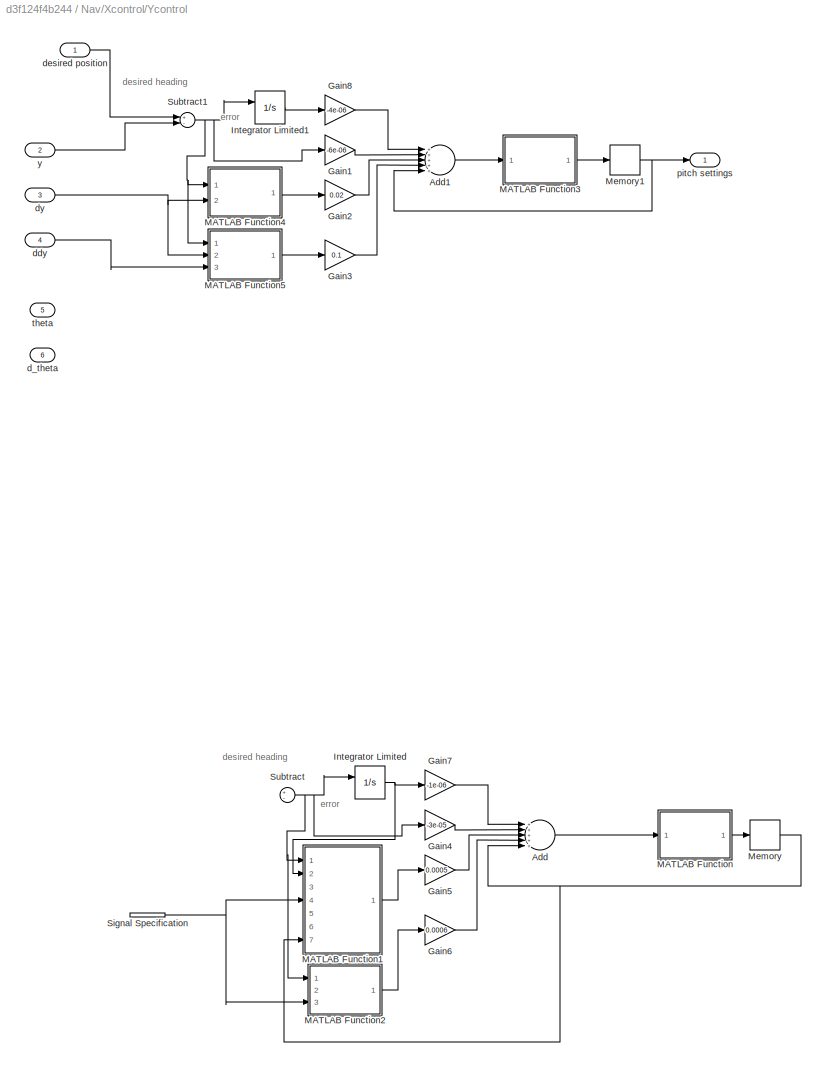
BLOCK [SubSystem] Nav/Xcontrol/Ycontrol
  Ports = [6, 1]
  RequestExecContextInheritance = off
  Variant = off
BLOCK [Sum] Nav/Xcontrol/Ycontrol/Add
  InputSameDT = off
  Inputs = +++++
  OutDataTypeStr = Inherit: Inherit via internal rule
  Ports = [5, 1]
  SaturateOnIntegerOverflow = off
BLOCK [Sum] Nav/Xcontrol/Ycontrol/Add1
  InputSameDT = off
  Inputs = +++++
  OutDataTypeStr = Inherit: Inherit via internal rule
  Ports = [5, 1]
  SaturateOnIntegerOverflow = off
BLOCK [Gain] Nav/Xcontrol/Ycontrol/Gain1
  Gain = -6e-06
  OutDataTypeStr = Inherit: Inherit via internal rule
  ParamDataTypeStr = Inherit: Inherit via internal rule
  SaturateOnIntegerOverflow = off
BLOCK [Gain] Nav/Xcontrol/Ycontrol/Gain2
  Gain = 0.02
  OutDataTypeStr = Inherit: Inherit via internal rule
  ParamDataTypeStr = Inherit: Inherit via internal rule
  SaturateOnIntegerOverflow = off
BLOCK [Gain] Nav/Xcontrol/Ycontrol/Gain3
  Gain = 0.1
  OutDataTypeStr = Inherit: Inherit via internal rule
  ParamDataTypeStr = Inherit: Inherit via internal rule
  SaturateOnIntegerOverflow = off
BLOCK [Gain] Nav/Xcontrol/Ycontrol/Gain4
  Gain = -3e-05
  OutDataTypeStr = Inherit: Inherit via internal rule
  ParamDataTypeStr = Inherit: Inherit via internal rule
  SaturateOnIntegerOverflow = off
BLOCK [Gain] Nav/Xcontrol/Ycontrol/Gain5
  Gain = 0.0005
  OutDataTypeStr = Inherit: Inherit via internal rule
  ParamDataTypeStr = Inherit: Inherit via internal rule
  SaturateOnIntegerOverflow = off
BLOCK [Gain] Nav/Xcontrol/Ycontrol/Gain6
  Gain = 0.0006
  OutDataTypeStr = Inherit: Inherit via internal rule
  ParamDataTypeStr = Inherit: Inherit via internal rule
  SaturateOnIntegerOverflow = off
BLOCK [Gain] Nav/Xcontrol/Ycontrol/Gain7
  Gain = -1e-06
  OutDataTypeStr = Inherit: Inherit via internal rule
  ParamDataTypeStr = Inherit: Inherit via internal rule
  SaturateOnIntegerOverflow = off
BLOCK [Gain] Nav/Xcontrol/Ycontrol/Gain8
  Gain = -4e-06
  OutDataTypeStr = Inherit: Inherit via internal rule
  ParamDataTypeStr = Inherit: Inherit via internal rule
  SaturateOnIntegerOverflow = off
BLOCK [Integrator] Nav/Xcontrol/Ycontrol/Integrator Limited
  ExternalReset = either
  LimitOutput = on
  LowerSaturationLimit = -10
  Ports = [2, 1]
  UpperSaturationLimit = 10
BLOCK [Integrator] Nav/Xcontrol/Ycontrol/Integrator Limited1
  ExternalReset = either
  LimitOutput = on
  LowerSaturationLimit = -1
  Ports = [2, 1]
  UpperSaturationLimit = 1
BLOCK [SubSystem] Nav/Xcontrol/Ycontrol/MATLAB Function
  ErrorFcn = Stateflow.Translate.translate
  PermitHierarchicalResolution = ExplicitOnly
  Ports = [1, 1]
  RequestExecContextInheritance = off
  SFBlockType = MATLAB Function
  TreatAsAtomicUnit = on
  Variant = off
BLOCK [Demux] Nav/Xcontrol/Ycontrol/MATLAB Function/ Demux 
  Outputs = 1
  Ports = [1, 1]
BLOCK [S-Function] Nav/Xcontrol/Ycontrol/MATLAB Function/ SFunction 
  EnableBusSupport = on
  FunctionName = sf_sfun
  PortCounts = [1 2]
  Ports = [1, 2]
  SFunctionDeploymentMode = off
  Tag = Stateflow S-Function DuoCopter1AGRESSIVE_Uncollapsed 26
BLOCK [Terminator] Nav/Xcontrol/Ycontrol/MATLAB Function/ Terminator 
BLOCK [Inport] Nav/Xcontrol/Ycontrol/MATLAB Function/input
  IconDisplay = Port number
BLOCK [Outport] Nav/Xcontrol/Ycontrol/MATLAB Function/output
  IconDisplay = Port number
BLOCK [SubSystem] Nav/Xcontrol/Ycontrol/MATLAB Function1
  ErrorFcn = Stateflow.Translate.translate
  PermitHierarchicalResolution = ExplicitOnly
  Ports = [7, 1]
  RequestExecContextInheritance = off
  SFBlockType = MATLAB Function
  TreatAsAtomicUnit = on
  Variant = off
BLOCK [Demux] Nav/Xcontrol/Ycontrol/MATLAB Function1/ Demux 
  Outputs = 1
  Ports = [1, 1]
BLOCK [S-Function] Nav/Xcontrol/Ycontrol/MATLAB Function1/ SFunction 
  EnableBusSupport = on
  FunctionName = sf_sfun
  PortCounts = [7 2]
  Ports = [7, 2]
  SFunctionDeploymentMode = off
  Tag = Stateflow S-Function DuoCopter1AGRESSIVE_Uncollapsed 27
BLOCK [Terminator] Nav/Xcontrol/Ycontrol/MATLAB Function1/ Terminator 
BLOCK [Inport] Nav/Xcontrol/Ycontrol/MATLAB Function1/I
  IconDisplay = Port number
  Port = 2
BLOCK [Inport] Nav/Xcontrol/Ycontrol/MATLAB Function1/P
  IconDisplay = Port number
BLOCK [Inport] Nav/Xcontrol/Ycontrol/MATLAB Function1/a
  IconDisplay = Port number
  Port = 4
BLOCK [Inport] Nav/Xcontrol/Ycontrol/MATLAB Function1/dtheta
  IconDisplay = Port number
  Port = 6
BLOCK [Inport] Nav/Xcontrol/Ycontrol/MATLAB Function1/memory
  IconDisplay = Port number
  Port = 7
BLOCK [Outport] Nav/Xcontrol/Ycontrol/MATLAB Function1/signal
  IconDisplay = Port number
BLOCK [Inport] Nav/Xcontrol/Ycontrol/MATLAB Function1/theta
  IconDisplay = Port number
  Port = 5
BLOCK [Inport] Nav/Xcontrol/Ycontrol/MATLAB Function1/v
  IconDisplay = Port number
  Port = 3
BLOCK [SubSystem] Nav/Xcontrol/Ycontrol/MATLAB Function2
  ErrorFcn = Stateflow.Translate.translate
  PermitHierarchicalResolution = ExplicitOnly
  Ports = [3, 1]
  RequestExecContextInheritance = off
  SFBlockType = MATLAB Function
  TreatAsAtomicUnit = on
  Variant = off
BLOCK [Demux] Nav/Xcontrol/Ycontrol/MATLAB Function2/ Demux 
  Outputs = 1
  Ports = [1, 1]
BLOCK [S-Function] Nav/Xcontrol/Ycontrol/MATLAB Function2/ SFunction 
  EnableBusSupport = on
  FunctionName = sf_sfun
  PortCounts = [3 2]
  Ports = [3, 2]
  SFunctionDeploymentMode = off
  Tag = Stateflow S-Function DuoCopter1AGRESSIVE_Uncollapsed 28
BLOCK [Terminator] Nav/Xcontrol/Ycontrol/MATLAB Function2/ Terminator 
BLOCK [Inport] Nav/Xcontrol/Ycontrol/MATLAB Function2/a
  IconDisplay = Port number
  Port = 3
BLOCK [Inport] Nav/Xcontrol/Ycontrol/MATLAB Function2/diff
  IconDisplay = Port number
BLOCK [Outport] Nav/Xcontrol/Ycontrol/MATLAB Function2/signal
  IconDisplay = Port number
BLOCK [Inport] Nav/Xcontrol/Ycontrol/MATLAB Function2/v
  IconDisplay = Port number
  Port = 2
BLOCK [SubSystem] Nav/Xcontrol/Ycontrol/MATLAB Function3
  ErrorFcn = Stateflow.Translate.translate
  PermitHierarchicalResolution = ExplicitOnly
  Ports = [1, 1]
  RequestExecContextInheritance = off
  SFBlockType = MATLAB Function
  TreatAsAtomicUnit = on
  Variant = off
BLOCK [Demux] Nav/Xcontrol/Ycontrol/MATLAB Function3/ Demux 
  Outputs = 1
  Ports = [1, 1]
BLOCK [S-Function] Nav/Xcontrol/Ycontrol/MATLAB Function3/ SFunction 
  EnableBusSupport = on
  FunctionName = sf_sfun
  PortCounts = [1 2]
  Ports = [1, 2]
  SFunctionDeploymentMode = off
  Tag = Stateflow S-Function DuoCopter1AGRESSIVE_Uncollapsed 29
BLOCK [Terminator] Nav/Xcontrol/Ycontrol/MATLAB Function3/ Terminator 
BLOCK [Inport] Nav/Xcontrol/Ycontrol/MATLAB Function3/input
  IconDisplay = Port number
BLOCK [Outport] Nav/Xcontrol/Ycontrol/MATLAB Function3/output
  IconDisplay = Port number
BLOCK [SubSystem] Nav/Xcontrol/Ycontrol/MATLAB Function4
  ErrorFcn = Stateflow.Translate.translate
  PermitHierarchicalResolution = ExplicitOnly
  Ports = [2, 1]
  RequestExecContextInheritance = off
  SFBlockType = MATLAB Function
  TreatAsAtomicUnit = on
  Variant = off
BLOCK [Demux] Nav/Xcontrol/Ycontrol/MATLAB Function4/ Demux 
  Outputs = 1
  Ports = [1, 1]
BLOCK [S-Function] Nav/Xcontrol/Ycontrol/MATLAB Function4/ SFunction 
  EnableBusSupport = on
  FunctionName = sf_sfun
  PortCounts = [2 2]
  Ports = [2, 2]
  SFunctionDeploymentMode = off
  Tag = Stateflow S-Function DuoCopter1AGRESSIVE_Uncollapsed 30
BLOCK [Terminator] Nav/Xcontrol/Ycontrol/MATLAB Function4/ Terminator 
BLOCK [Inport] Nav/Xcontrol/Ycontrol/MATLAB Function4/diff
  IconDisplay = Port number
BLOCK [Outport] Nav/Xcontrol/Ycontrol/MATLAB Function4/signal
  IconDisplay = Port number
BLOCK [Inport] Nav/Xcontrol/Ycontrol/MATLAB Function4/v
  IconDisplay = Port number
  Port = 2
BLOCK [SubSystem] Nav/Xcontrol/Ycontrol/MATLAB Function5
  ErrorFcn = Stateflow.Translate.translate
  PermitHierarchicalResolution = ExplicitOnly
  Ports = [3, 1]
  RequestExecContextInheritance = off
  SFBlockType = MATLAB Function
  TreatAsAtomicUnit = on
  Variant = off
BLOCK [Demux] Nav/Xcontrol/Ycontrol/MATLAB Function5/ Demux 
  Outputs = 1
  Ports = [1, 1]
BLOCK [S-Function] Nav/Xcontrol/Ycontrol/MATLAB Function5/ SFunction 
  EnableBusSupport = on
  FunctionName = sf_sfun
  PortCounts = [3 2]
  Ports = [3, 2]
  SFunctionDeploymentMode = off
  Tag = Stateflow S-Function DuoCopter1AGRESSIVE_Uncollapsed 31
BLOCK [Terminator] Nav/Xcontrol/Ycontrol/MATLAB Function5/ Terminator 
BLOCK [Inport] Nav/Xcontrol/Ycontrol/MATLAB Function5/a
  IconDisplay = Port number
  Port = 3
BLOCK [Inport] Nav/Xcontrol/Ycontrol/MATLAB Function5/diff
  IconDisplay = Port number
BLOCK [Outport] Nav/Xcontrol/Ycontrol/MATLAB Function5/signal
  IconDisplay = Port number
BLOCK [Inport] Nav/Xcontrol/Ycontrol/MATLAB Function5/v
  IconDisplay = Port number
  Port = 2
BLOCK [Memory] Nav/Xcontrol/Ycontrol/Memory
  InheritSampleTime = on
  LinearizeAsDelay = on
BLOCK [Memory] Nav/Xcontrol/Ycontrol/Memory1
  InheritSampleTime = on
  LinearizeAsDelay = on
BLOCK [SignalSpecification] Nav/Xcontrol/Ycontrol/Signal Specification
  Dimensions = 1
BLOCK [Sum] Nav/Xcontrol/Ycontrol/Subtract
  InputSameDT = off
  Inputs = +-
  OutDataTypeStr = Inherit: Inherit via internal rule
  Ports = [2, 1]
  SaturateOnIntegerOverflow = off
BLOCK [Sum] Nav/Xcontrol/Ycontrol/Subtract1
  InputSameDT = off
  Inputs = +-
  OutDataTypeStr = Inherit: Inherit via internal rule
  Ports = [2, 1]
  SaturateOnIntegerOverflow = off
BLOCK [Inport] Nav/Xcontrol/Ycontrol/d_theta
  IconDisplay = Port number
  Port = 6
BLOCK [Inport] Nav/Xcontrol/Ycontrol/ddy
  IconDisplay = Port number
  Port = 4
BLOCK [Inport] Nav/Xcontrol/Ycontrol/desired position
  IconDisplay = Port number
BLOCK [Inport] Nav/Xcontrol/Ycontrol/dy
  IconDisplay = Port number
  Port = 3
BLOCK [Outport] Nav/Xcontrol/Ycontrol/pitch settings
  IconDisplay = Port number
BLOCK [Inport] Nav/Xcontrol/Ycontrol/theta
  IconDisplay = Port number
  Port = 5
BLOCK [Inport] Nav/Xcontrol/Ycontrol/y
  IconDisplay = Port number
  Port = 2
BLOCK [SubSystem] Octocopter
  MinAlgLoopOccurrences = on
  Ports = [3, 2]
  RequestExecContextInheritance = off
  SystemSampleTime = 0.01
  Variant = off
BLOCK [SubSystem] Octocopter/6 DOF joint
  Ports = [1, 2, 0, 0, 0, 2]
  RequestExecContextInheritance = off
  Variant = off
BLOCK [Reference] Octocopter/6 DOF joint/6-DOF Joint  REF=sm_lib/Joints/6-DOF Joint
  Ports = [0, 0, 0, 0, 0, 5, 13]
  SourceBlock = sm_lib/Joints/6-DOF Joint
  SourceType = 6-DOF Joint
BLOCK [PMIOPort] Octocopter/6 DOF joint/Conn1
  Port = 1
  Side = Left
BLOCK [PMIOPort] Octocopter/6 DOF joint/Conn2
  Port = 2
  Side = Left
BLOCK [Demux] Octocopter/6 DOF joint/Demux
  DisplayOption = bar
  Ports = [1, 4]
BLOCK [Mux] Octocopter/6 DOF joint/Mux
  DisplayOption = bar
  Inputs = 9
  Ports = [9, 1]
BLOCK [Mux] Octocopter/6 DOF joint/Mux1
  DisplayOption = bar
  Inputs = 3
  Ports = [3, 1]
BLOCK [Reference] Octocopter/6 DOF joint/PS-Simulink Converter  REF=nesl_utility/PS-Simulink
Converter
  Ports = [0, 1, 0, 0, 0, 1]
  SourceBlock = nesl_utility/PS-Simulink\nConverter
  SourceType = PS-Simulink\nConverter
BLOCK [Reference] Octocopter/6 DOF joint/PS-Simulink Converter1  REF=nesl_utility/PS-Simulink
Converter
  Ports = [0, 1, 0, 0, 0, 1]
  SourceBlock = nesl_utility/PS-Simulink\nConverter
  SourceType = PS-Simulink\nConverter
BLOCK [Reference] Octocopter/6 DOF joint/PS-Simulink Converter10  REF=nesl_utility/PS-Simulink
Converter
  Ports = [0, 1, 0, 0, 0, 1]
  SourceBlock = nesl_utility/PS-Simulink\nConverter
  SourceType = PS-Simulink\nConverter
BLOCK [Reference] Octocopter/6 DOF joint/PS-Simulink Converter11  REF=nesl_utility/PS-Simulink
Converter
  Ports = [0, 1, 0, 0, 0, 1]
  SourceBlock = nesl_utility/PS-Simulink\nConverter
  SourceType = PS-Simulink\nConverter
BLOCK [Reference] Octocopter/6 DOF joint/PS-Simulink Converter12  REF=nesl_utility/PS-Simulink
Converter
  Ports = [0, 1, 0, 0, 0, 1]
  SourceBlock = nesl_utility/PS-Simulink\nConverter
  SourceType = PS-Simulink\nConverter
BLOCK [Reference] Octocopter/6 DOF joint/PS-Simulink Converter2  REF=nesl_utility/PS-Simulink
Converter
  Ports = [0, 1, 0, 0, 0, 1]
  SourceBlock = nesl_utility/PS-Simulink\nConverter
  SourceType = PS-Simulink\nConverter
BLOCK [Reference] Octocopter/6 DOF joint/PS-Simulink Converter3  REF=nesl_utility/PS-Simulink
Converter
  Ports = [0, 1, 0, 0, 0, 1]
  SourceBlock = nesl_utility/PS-Simulink\nConverter
  SourceType = PS-Simulink\nConverter
BLOCK [Reference] Octocopter/6 DOF joint/PS-Simulink Converter4  REF=nesl_utility/PS-Simulink
Converter
  Ports = [0, 1, 0, 0, 0, 1]
  SourceBlock = nesl_utility/PS-Simulink\nConverter
  SourceType = PS-Simulink\nConverter
BLOCK [Reference] Octocopter/6 DOF joint/PS-Simulink Converter5  REF=nesl_utility/PS-Simulink
Converter
  Ports = [0, 1, 0, 0, 0, 1]
  SourceBlock = nesl_utility/PS-Simulink\nConverter
  SourceType = PS-Simulink\nConverter
BLOCK [Reference] Octocopter/6 DOF joint/PS-Simulink Converter6  REF=nesl_utility/PS-Simulink
Converter
  Ports = [0, 1, 0, 0, 0, 1]
  SourceBlock = nesl_utility/PS-Simulink\nConverter
  SourceType = PS-Simulink\nConverter
BLOCK [Reference] Octocopter/6 DOF joint/PS-Simulink Converter7  REF=nesl_utility/PS-Simulink
Converter
  Ports = [0, 1, 0, 0, 0, 1]
  SourceBlock = nesl_utility/PS-Simulink\nConverter
  SourceType = PS-Simulink\nConverter
BLOCK [Reference] Octocopter/6 DOF joint/PS-Simulink Converter8  REF=nesl_utility/PS-Simulink
Converter
  Ports = [0, 1, 0, 0, 0, 1]
  SourceBlock = nesl_utility/PS-Simulink\nConverter
  SourceType = PS-Simulink\nConverter
BLOCK [Outport] Octocopter/6 DOF joint/Position Vector
  IconDisplay = Port number
BLOCK [RateTransition] Octocopter/6 DOF joint/Rate Transition
BLOCK [RateTransition] Octocopter/6 DOF joint/Rate Transition1
BLOCK [Outport] Octocopter/6 DOF joint/Rotation Vector
  IconDisplay = Port number
  Port = 2
BLOCK [Reference] Octocopter/6 DOF joint/Simulink-PS Converter  REF=nesl_utility/Simulink-PS
Converter
  Ports = [1, 0, 0, 0, 0, 0, 1]
  SourceBlock = nesl_utility/Simulink-PS\nConverter
  SourceType = Simulink-PS\nConverter
BLOCK [Reference] Octocopter/6 DOF joint/Simulink-PS Converter1  REF=nesl_utility/Simulink-PS
Converter
  Ports = [1, 0, 0, 0, 0, 0, 1]
  SourceBlock = nesl_utility/Simulink-PS\nConverter
  SourceType = Simulink-PS\nConverter
BLOCK [Reference] Octocopter/6 DOF joint/Simulink-PS Converter2  REF=nesl_utility/Simulink-PS
Converter
  Ports = [1, 0, 0, 0, 0, 0, 1]
  SourceBlock = nesl_utility/Simulink-PS\nConverter
  SourceType = Simulink-PS\nConverter
BLOCK [Reference] Octocopter/6 DOF joint/Simulink-PS Converter3  REF=nesl_utility/Simulink-PS
Converter
  Ports = [1, 0, 0, 0, 0, 0, 1]
  SourceBlock = nesl_utility/Simulink-PS\nConverter
  SourceType = Simulink-PS\nConverter
BLOCK [SubSystem] Octocopter/6 DOF joint/Subsystem
  Ports = [1, 1]
  RequestExecContextInheritance = off
  Variant = off
BLOCK [Demux] Octocopter/6 DOF joint/Subsystem/Demux
  DisplayOption = bar
  Outputs = 3
  Ports = [1, 3]
BLOCK [Demux] Octocopter/6 DOF joint/Subsystem/Demux1
  DisplayOption = bar
  Outputs = 2
  Ports = [1, 2]
BLOCK [Inport] Octocopter/6 DOF joint/Subsystem/In1
  IconDisplay = Port number
BLOCK [SubSystem] Octocopter/6 DOF joint/Subsystem/MATLAB Function
  ErrorFcn = Stateflow.Translate.translate
  PermitHierarchicalResolution = ExplicitOnly
  Ports = [1, 1]
  RequestExecContextInheritance = off
  SFBlockType = MATLAB Function
  TreatAsAtomicUnit = on
  Variant = off
BLOCK [Demux] Octocopter/6 DOF joint/Subsystem/MATLAB Function/ Demux 
  Outputs = 1
  Ports = [1, 1]
BLOCK [S-Function] Octocopter/6 DOF joint/Subsystem/MATLAB Function/ SFunction 
  EnableBusSupport = on
  FunctionName = sf_sfun
  PortCounts = [1 2]
  Ports = [1, 2]
  SFunctionDeploymentMode = off
  Tag = Stateflow S-Function DuoCopter1AGRESSIVE_Uncollapsed 13
BLOCK [Terminator] Octocopter/6 DOF joint/Subsystem/MATLAB Function/ Terminator 
BLOCK [Inport] Octocopter/6 DOF joint/Subsystem/MATLAB Function/u
  IconDisplay = Port number
BLOCK [Outport] Octocopter/6 DOF joint/Subsystem/MATLAB Function/y
  IconDisplay = Port number
BLOCK [SubSystem] Octocopter/6 DOF joint/Subsystem/MATLAB Function1
  ErrorFcn = Stateflow.Translate.translate
  PermitHierarchicalResolution = ExplicitOnly
  Ports = [1, 1]
  RequestExecContextInheritance = off
  SFBlockType = MATLAB Function
  TreatAsAtomicUnit = on
  Variant = off
BLOCK [Demux] Octocopter/6 DOF joint/Subsystem/MATLAB Function1/ Demux 
  Outputs = 1
  Ports = [1, 1]
BLOCK [S-Function] Octocopter/6 DOF joint/Subsystem/MATLAB Function1/ SFunction 
  EnableBusSupport = on
  FunctionName = sf_sfun
  PortCounts = [1 2]
  Ports = [1, 2]
  SFunctionDeploymentMode = off
  Tag = Stateflow S-Function DuoCopter1AGRESSIVE_Uncollapsed 14
BLOCK [Terminator] Octocopter/6 DOF joint/Subsystem/MATLAB Function1/ Terminator 
BLOCK [Inport] Octocopter/6 DOF joint/Subsystem/MATLAB Function1/u
  IconDisplay = Port number
BLOCK [Outport] Octocopter/6 DOF joint/Subsystem/MATLAB Function1/y
  IconDisplay = Port number
BLOCK [SubSystem] Octocopter/6 DOF joint/Subsystem/MATLAB Function2
  ErrorFcn = Stateflow.Translate.translate
  PermitHierarchicalResolution = ExplicitOnly
  Ports = [1, 1]
  RequestExecContextInheritance = off
  SFBlockType = MATLAB Function
  TreatAsAtomicUnit = on
  Variant = off
BLOCK [Demux] Octocopter/6 DOF joint/Subsystem/MATLAB Function2/ Demux 
  Outputs = 1
  Ports = [1, 1]
BLOCK [S-Function] Octocopter/6 DOF joint/Subsystem/MATLAB Function2/ SFunction 
  EnableBusSupport = on
  FunctionName = sf_sfun
  PortCounts = [1 2]
  Ports = [1, 2]
  SFunctionDeploymentMode = off
  Tag = Stateflow S-Function DuoCopter1AGRESSIVE_Uncollapsed 15
BLOCK [Terminator] Octocopter/6 DOF joint/Subsystem/MATLAB Function2/ Terminator 
BLOCK [Inport] Octocopter/6 DOF joint/Subsystem/MATLAB Function2/u
  IconDisplay = Port number
BLOCK [Outport] Octocopter/6 DOF joint/Subsystem/MATLAB Function2/y
  IconDisplay = Port number
BLOCK [Mux] Octocopter/6 DOF joint/Subsystem/Mux
  DisplayOption = bar
  Inputs = 3
  Ports = [3, 1]
BLOCK [Outport] Octocopter/6 DOF joint/Subsystem/Out1
  IconDisplay = Port number
BLOCK [Inport] Octocopter/6 DOF joint/aerodynamic forces and moment 
  IconDisplay = Port number
BLOCK [Demux] Octocopter/Demux
  DisplayOption = bar
  Outputs = 8
  Ports = [1, 8]
BLOCK [Inport] Octocopter/Engine settings
  IconDisplay = Port number
BLOCK [SubSystem] Octocopter/Horizontal 1
  Ports = [2, 0, 0, 0, 0, 0, 1]
  RequestExecContextInheritance = off
  Variant = off
BLOCK [PMIOPort] Octocopter/Horizontal 1/Conn1
  Port = 1
  Side = Right
BLOCK [Constant] Octocopter/Horizontal 1/Constant
  Value = 0
BLOCK [Reference] Octocopter/Horizontal 1/HorizontalBar1  REF=sm_lib/Body Elements/Solid
  Ports = [0, 0, 0, 0, 0, 0, 1]
  SourceBlock = sm_lib/Body Elements/Solid
  SourceType = Solid
BLOCK [Reference] Octocopter/Horizontal 1/HorizontalBar2  REF=sm_lib/Body Elements/Solid
  Ports = [0, 0, 0, 0, 0, 0, 1]
  SourceBlock = sm_lib/Body Elements/Solid
  SourceType = Solid
BLOCK [Reference] Octocopter/Horizontal 1/HorizontalBar3  REF=sm_lib/Body Elements/Solid
  Ports = [0, 0, 0, 0, 0, 0, 1]
  SourceBlock = sm_lib/Body Elements/Solid
  SourceType = Solid
BLOCK [ManualSwitch] Octocopter/Horizontal 1/Manual Switch
  CurrentSetting = 0
BLOCK [Inport] Octocopter/Horizontal 1/Motor 3 cw
  IconDisplay = Port number
  Port = 2
BLOCK [Inport] Octocopter/Horizontal 1/Motor 8 ccw
  IconDisplay = Port number
BLOCK [Reference] Octocopter/Horizontal 1/Motor Clockwise 3  REF=Library_Octocopter/Motor Clockwise1
  Ports = [1, 0, 0, 0, 0, 0, 1]
  SourceBlock = Library_Octocopter/Motor Clockwise1
  SourceType = SubSystem
BLOCK [Reference] Octocopter/Horizontal 1/Motor Counter Clockwise 8  REF=Library_Octocopter/Motor Counter Clockwise1
  Ports = [1, 0, 0, 0, 0, 0, 1]
  SourceBlock = Library_Octocopter/Motor Counter Clockwise1
  SourceType = SubSystem
BLOCK [Reference] Octocopter/Horizontal 1/Rigid Transform1  REF=sm_lib/Frames and
Transforms/Rigid
Transform
  Ports = [0, 0, 0, 0, 0, 1, 1]
  SourceBlock = sm_lib/Frames and\nTransforms/Rigid\nTransform
  SourceType = Rigid\nTransform
BLOCK [Reference] Octocopter/Horizontal 1/Rigid Transform2  REF=sm_lib/Frames and
Transforms/Rigid
Transform
  Ports = [0, 0, 0, 0, 0, 1, 1]
  SourceBlock = sm_lib/Frames and\nTransforms/Rigid\nTransform
  SourceType = Rigid\nTransform
BLOCK [Reference] Octocopter/Horizontal 1/Rigid Transform3  REF=sm_lib/Frames and
Transforms/Rigid
Transform
  Ports = [0, 0, 0, 0, 0, 1, 1]
  SourceBlock = sm_lib/Frames and\nTransforms/Rigid\nTransform
  SourceType = Rigid\nTransform
BLOCK [Reference] Octocopter/Horizontal 1/Rigid Transform6  REF=sm_lib/Frames and
Transforms/Rigid
Transform
  Ports = [0, 0, 0, 0, 0, 1, 1]
  SourceBlock = sm_lib/Frames and\nTransforms/Rigid\nTransform
  SourceType = Rigid\nTransform
BLOCK [SubSystem] Octocopter/Horizontal 2
  Ports = [2, 0, 0, 0, 0, 0, 1]
  RequestExecContextInheritance = off
  Variant = off
BLOCK [PMIOPort] Octocopter/Horizontal 2/Conn1
  Port = 1
  Side = Right
BLOCK [Reference] Octocopter/Horizontal 2/HorizontalBar1  REF=sm_lib/Body Elements/Solid
  Ports = [0, 0, 0, 0, 0, 0, 1]
  SourceBlock = sm_lib/Body Elements/Solid
  SourceType = Solid
BLOCK [Reference] Octocopter/Horizontal 2/HorizontalBar2  REF=sm_lib/Body Elements/Solid
  Ports = [0, 0, 0, 0, 0, 0, 1]
  SourceBlock = sm_lib/Body Elements/Solid
  SourceType = Solid
BLOCK [Reference] Octocopter/Horizontal 2/HorizontalBar3  REF=sm_lib/Body Elements/Solid
  Ports = [0, 0, 0, 0, 0, 0, 1]
  SourceBlock = sm_lib/Body Elements/Solid
  SourceType = Solid
BLOCK [Inport] Octocopter/Horizontal 2/Motor 4 ccw
  IconDisplay = Port number
  Port = 2
BLOCK [Inport] Octocopter/Horizontal 2/Motor 7 cw
  IconDisplay = Port number
BLOCK [Reference] Octocopter/Horizontal 2/Motor Clockwise 7  REF=Library_Octocopter/Motor Clockwise1
  Ports = [1, 0, 0, 0, 0, 0, 1]
  SourceBlock = Library_Octocopter/Motor Clockwise1
  SourceType = SubSystem
BLOCK [Reference] Octocopter/Horizontal 2/Motor Counter Clockwise 4  REF=Library_Octocopter/Motor Counter Clockwise1
  Ports = [1, 0, 0, 0, 0, 0, 1]
  SourceBlock = Library_Octocopter/Motor Counter Clockwise1
  SourceType = SubSystem
BLOCK [Reference] Octocopter/Horizontal 2/Rigid Transform4  REF=sm_lib/Frames and
Transforms/Rigid
Transform
  Ports = [0, 0, 0, 0, 0, 1, 1]
  SourceBlock = sm_lib/Frames and\nTransforms/Rigid\nTransform
  SourceType = Rigid\nTransform
BLOCK [Reference] Octocopter/Horizontal 2/Rigid Transform5  REF=sm_lib/Frames and
Transforms/Rigid
Transform
  Ports = [0, 0, 0, 0, 0, 1, 1]
  SourceBlock = sm_lib/Frames and\nTransforms/Rigid\nTransform
  SourceType = Rigid\nTransform
BLOCK [Reference] Octocopter/Horizontal 2/Rigid Transform7  REF=sm_lib/Frames and
Transforms/Rigid
Transform
  Ports = [0, 0, 0, 0, 0, 1, 1]
  SourceBlock = sm_lib/Frames and\nTransforms/Rigid\nTransform
  SourceType = Rigid\nTransform
BLOCK [Reference] Octocopter/Horizontal 2/Rigid Transform8  REF=sm_lib/Frames and
Transforms/Rigid
Transform
  Ports = [0, 0, 0, 0, 0, 1, 1]
  SourceBlock = sm_lib/Frames and\nTransforms/Rigid\nTransform
  SourceType = Rigid\nTransform
BLOCK [Reference] Octocopter/Mechanism Configuration  REF=sm_lib/Utilities/Mechanism
Configuration
  Ports = [0, 0, 0, 0, 0, 0, 1]
  SourceBlock = sm_lib/Utilities/Mechanism\nConfiguration
  SourceType = Mechanism\nConfiguration
BLOCK [Outport] Octocopter/Position Vector
  IconDisplay = Port number
BLOCK [Reference] Octocopter/Rigid Transform  REF=sm_lib/Frames and
Transforms/Rigid
Transform
  Ports = [0, 0, 0, 0, 0, 1, 1]
  SourceBlock = sm_lib/Frames and\nTransforms/Rigid\nTransform
  SourceType = Rigid\nTransform
BLOCK [Outport] Octocopter/Rotation Vector
  IconDisplay = Port number
  Port = 2
BLOCK [Reference] Octocopter/Solid  REF=sm_lib/Body Elements/Solid
  Ports = [0, 0, 0, 0, 0, 0, 1]
  SourceBlock = sm_lib/Body Elements/Solid
  SourceType = Solid
BLOCK [Reference] Octocopter/Solver Configuration  REF=nesl_utility/Solver
Configuration
  Ports = [0, 0, 0, 0, 0, 0, 1]
  SourceBlock = nesl_utility/Solver\nConfiguration
  SourceType = Solver\nConfiguration
BLOCK [SubSystem] Octocopter/Vertical 1
  Ports = [2, 0, 0, 0, 0, 0, 1]
  RequestExecContextInheritance = off
  Variant = off
BLOCK [PMIOPort] Octocopter/Vertical 1/Conn1
  Port = 1
  Side = Right
BLOCK [Constant] Octocopter/Vertical 1/Constant
  Value = 0
BLOCK [Reference] Octocopter/Vertical 1/HorizontalBar1  REF=sm_lib/Body Elements/Solid
  Ports = [0, 0, 0, 0, 0, 0, 1]
  SourceBlock = sm_lib/Body Elements/Solid
  SourceType = Solid
BLOCK [Reference] Octocopter/Vertical 1/HorizontalBar2  REF=sm_lib/Body Elements/Solid
  Ports = [0, 0, 0, 0, 0, 0, 1]
  SourceBlock = sm_lib/Body Elements/Solid
  SourceType = Solid
BLOCK [ManualSwitch] Octocopter/Vertical 1/Manual Switch
  CurrentSetting = 0
BLOCK [Inport] Octocopter/Vertical 1/Motor 1 cw
  IconDisplay = Port number
BLOCK [Inport] Octocopter/Vertical 1/Motor 6 ccw
  IconDisplay = Port number
  Port = 2
BLOCK [Reference] Octocopter/Vertical 1/Motor Clockwise 1  REF=Library_Octocopter/Motor Clockwise1
  Ports = [1, 0, 0, 0, 0, 0, 1]
  SourceBlock = Library_Octocopter/Motor Clockwise1
  SourceType = SubSystem
BLOCK [Reference] Octocopter/Vertical 1/Motor Counter Clockwise 6  REF=Library_Octocopter/Motor Counter Clockwise1
  Ports = [1, 0, 0, 0, 0, 0, 1]
  SourceBlock = Library_Octocopter/Motor Counter Clockwise1
  SourceType = SubSystem
BLOCK [Reference] Octocopter/Vertical 1/Rigid Transform10  REF=sm_lib/Frames and
Transforms/Rigid
Transform
  Ports = [0, 0, 0, 0, 0, 1, 1]
  SourceBlock = sm_lib/Frames and\nTransforms/Rigid\nTransform
  SourceType = Rigid\nTransform
BLOCK [Reference] Octocopter/Vertical 1/Rigid Transform11  REF=sm_lib/Frames and
Transforms/Rigid
Transform
  Ports = [0, 0, 0, 0, 0, 1, 1]
  SourceBlock = sm_lib/Frames and\nTransforms/Rigid\nTransform
  SourceType = Rigid\nTransform
BLOCK [Reference] Octocopter/Vertical 1/Rigid Transform14  REF=sm_lib/Frames and
Transforms/Rigid
Transform
  Ports = [0, 0, 0, 0, 0, 1, 1]
  SourceBlock = sm_lib/Frames and\nTransforms/Rigid\nTransform
  SourceType = Rigid\nTransform
BLOCK [Reference] Octocopter/Vertical 1/Rigid Transform18  REF=sm_lib/Frames and
Transforms/Rigid
Transform
  Ports = [0, 0, 0, 0, 0, 1, 1]
  SourceBlock = sm_lib/Frames and\nTransforms/Rigid\nTransform
  SourceType = Rigid\nTransform
BLOCK [Reference] Octocopter/Vertical 1/Rigid Transform9  REF=sm_lib/Frames and
Transforms/Rigid
Transform
  Ports = [0, 0, 0, 0, 0, 1, 1]
  SourceBlock = sm_lib/Frames and\nTransforms/Rigid\nTransform
  SourceType = Rigid\nTransform
BLOCK [Reference] Octocopter/Vertical 1/VerticalBar1  REF=sm_lib/Body Elements/Solid
  Ports = [0, 0, 0, 0, 0, 0, 1]
  SourceBlock = sm_lib/Body Elements/Solid
  SourceType = Solid
BLOCK [SubSystem] Octocopter/Vertical 2
  Ports = [2, 0, 0, 0, 0, 0, 1]
  RequestExecContextInheritance = off
  Variant = off
BLOCK [PMIOPort] Octocopter/Vertical 2/Conn1
  Port = 1
  Side = Right
BLOCK [Reference] Octocopter/Vertical 2/HorizontalBar1  REF=sm_lib/Body Elements/Solid
  Ports = [0, 0, 0, 0, 0, 0, 1]
  SourceBlock = sm_lib/Body Elements/Solid
  SourceType = Solid
BLOCK [Reference] Octocopter/Vertical 2/HorizontalBar2  REF=sm_lib/Body Elements/Solid
  Ports = [0, 0, 0, 0, 0, 0, 1]
  SourceBlock = sm_lib/Body Elements/Solid
  SourceType = Solid
BLOCK [Inport] Octocopter/Vertical 2/Motor 2 ccw 
  IconDisplay = Port number
BLOCK [Inport] Octocopter/Vertical 2/Motor 5 cw
  IconDisplay = Port number
  Port = 2
BLOCK [Reference] Octocopter/Vertical 2/Motor Clockwise 5  REF=Library_Octocopter/Motor Clockwise1
  Ports = [1, 0, 0, 0, 0, 0, 1]
  SourceBlock = Library_Octocopter/Motor Clockwise1
  SourceType = SubSystem
BLOCK [Reference] Octocopter/Vertical 2/Motor Counter Clockwise 2  REF=Library_Octocopter/Motor Counter Clockwise1
  Ports = [1, 0, 0, 0, 0, 0, 1]
  SourceBlock = Library_Octocopter/Motor Counter Clockwise1
  SourceType = SubSystem
BLOCK [Reference] Octocopter/Vertical 2/Rigid Transform12  REF=sm_lib/Frames and
Transforms/Rigid
Transform
  Ports = [0, 0, 0, 0, 0, 1, 1]
  SourceBlock = sm_lib/Frames and\nTransforms/Rigid\nTransform
  SourceType = Rigid\nTransform
BLOCK [Reference] Octocopter/Vertical 2/Rigid Transform13  REF=sm_lib/Frames and
Transforms/Rigid
Transform
  Ports = [0, 0, 0, 0, 0, 1, 1]
  SourceBlock = sm_lib/Frames and\nTransforms/Rigid\nTransform
  SourceType = Rigid\nTransform
BLOCK [Reference] Octocopter/Vertical 2/Rigid Transform15  REF=sm_lib/Frames and
Transforms/Rigid
Transform
  Ports = [0, 0, 0, 0, 0, 1, 1]
  SourceBlock = sm_lib/Frames and\nTransforms/Rigid\nTransform
  SourceType = Rigid\nTransform
BLOCK [Reference] Octocopter/Vertical 2/Rigid Transform16  REF=sm_lib/Frames and
Transforms/Rigid
Transform
  Ports = [0, 0, 0, 0, 0, 1, 1]
  SourceBlock = sm_lib/Frames and\nTransforms/Rigid\nTransform
  SourceType = Rigid\nTransform
BLOCK [Reference] Octocopter/Vertical 2/Rigid Transform17  REF=sm_lib/Frames and
Transforms/Rigid
Transform
  Ports = [0, 0, 0, 0, 0, 1, 1]
  SourceBlock = sm_lib/Frames and\nTransforms/Rigid\nTransform
  SourceType = Rigid\nTransform
BLOCK [Reference] Octocopter/Vertical 2/VerticalBar 2  REF=sm_lib/Body Elements/Solid
  Ports = [0, 0, 0, 0, 0, 0, 1]
  SourceBlock = sm_lib/Body Elements/Solid
  SourceType = Solid
BLOCK [Reference] Octocopter/World Frame  REF=sm_lib/Frames and
Transforms/World Frame
  Ports = [0, 0, 0, 0, 0, 0, 1]
  SourceBlock = sm_lib/Frames and\nTransforms/World Frame
  SourceType = World Frame
BLOCK [Inport] Octocopter/aerodynamics
  IconDisplay = Port number
  Port = 2
BLOCK [Inport] Octocopter/killswitch 
  IconDisplay = Port number
  Port = 3
BLOCK [Scope] Scope
  IOType = viewer
  Ports = []
  ScopeSpecificationString = Simulink.scopes.TimeScopeBlockCfg('CurrentConfiguration', extmgr.ConfigurationSet(extmgr.Configuration('Core','General UI',true),extmgr.Configuration('Core','Source UI',true),extmgr.Configuration('Sources','WiredSimulink',true,'DataLoggingVariableName','ScopeData1'),extmgr.Configuration('Visuals','Time Domain',true,'SerializedDisplays',{struct('MinYLimReal','-32.51197','MaxYLimReal','291.87124','Y...<+1442ch>
BLOCK [Scope] Scope1
  IOType = viewer
  Ports = []
  ScopeSpecificationString = Simulink.scopes.TimeScopeBlockCfg('CurrentConfiguration', extmgr.ConfigurationSet(extmgr.Configuration('Core','General UI',true),extmgr.Configuration('Core','Source UI',true),extmgr.Configuration('Sources','WiredSimulink',true,'DataLoggingVariableName','ScopeData2'),extmgr.Configuration('Visuals','Time Domain',true,'SerializedDisplays',{struct('MinYLimReal','0.21875','MaxYLimReal','1.03125','YLabe...<+1393ch>
BLOCK [Scope] Scope2
  IOType = viewer
  Ports = []
  ScopeSpecificationString = Simulink.scopes.TimeScopeBlockCfg('CurrentConfiguration', extmgr.ConfigurationSet(extmgr.Configuration('Core','General UI',true),extmgr.Configuration('Core','Source UI',true),extmgr.Configuration('Sources','WiredSimulink',true,'DataLoggingVariableName','ScopeData3'),extmgr.Configuration('Visuals','Time Domain',true,'SerializedDisplays',{struct('MinYLimReal','-40.49743','MaxYLimReal','4.42449','YLa...<+1532ch>
BLOCK [SubSystem] killswitches
  Ports = [0, 1]
  RequestExecContextInheritance = off
  Variant = off
BLOCK [Constant] killswitches/Constant
  SampleTime = 1
  Value = 0
BLOCK [Constant] killswitches/Constant1
  SampleTime = 1
BLOCK [ManualSwitch] killswitches/Manual Switch
BLOCK [ManualSwitch] killswitches/Manual Switch1
BLOCK [ManualSwitch] killswitches/Manual Switch2
BLOCK [ManualSwitch] killswitches/Manual Switch3
BLOCK [ManualSwitch] killswitches/Manual Switch4
BLOCK [ManualSwitch] killswitches/Manual Switch5
BLOCK [ManualSwitch] killswitches/Manual Switch6
BLOCK [ManualSwitch] killswitches/Manual Switch7
  CurrentSetting = 0
BLOCK [Mux] killswitches/Mux
  DisplayOption = bar
  Inputs = 8
  Ports = [8, 1]
BLOCK [Outport] killswitches/killswitch
  IconDisplay = Port number
ANNOTATION Control/Altitude: desired altitude
ANNOTATION Control/Altitude: error
ANNOTATION Control/Pitch/Pitchsub: Previous signal
ANNOTATION Control/Pitch/Pitchsub: desired pitch
ANNOTATION Control/Roll/Rollsub: desired heading
ANNOTATION Control/Roll/Rollsub: error
ANNOTATION Control/Yaw/Yawsub: error
ANNOTATION Nav/Xcontrol/Ycontrol: desired heading
ANNOTATION Nav/Xcontrol/Ycontrol: error
ANNOTATION Octocopter/6 DOF joint: phi, theta, psi, phi_d, theta_d, psi_d, phi_dd, theta_dd, psi_dd
ANNOTATION Octocopter/6 DOF joint: x, x_d, x_dd, y, y_d, y_dd, z, z_d, z_dd
LINE Aerodynamic forces and moments/Add1:1 -> Aerodynamic forces and moments/Mux:2
LINE Aerodynamic forces and moments/Add2:1 -> Aerodynamic forces and moments/Mux:3
NET Aerodynamic forces and moments/Add3:1 -> Aerodynamic forces and moments/Container X:1, Aerodynamic forces and moments/Drag x cables:1, Aerodynamic forces and moments/Drag x struct:1, Aerodynamic forces and moments/Drag_pitch_x:1
LINE Aerodynamic forces and moments/Add:1 -> Aerodynamic forces and moments/Mux:1
NET Aerodynamic forces and moments/Atmosphere:1 -> Aerodynamic forces and moments/Container X:2, Aerodynamic forces and moments/Container Y:2, Aerodynamic forces and moments/Drag x cables:2, Aerodynamic forces and moments/Drag x struct:2, Aerodynamic forces and moments/Drag y cables:2, Aerodynamic forces and moments/Drag y struct:2, Aerodynamic forces and moments/Drag_pitch_x:2, Aerodynamic forces and moments/Drag_roll_y:2, Aerodynamic forces and moments/Dragz :2, Aerodynamic forces and moments/Dragz Cables:2, Aerodynamic forces and moments/Dragz Container:2
NET Aerodynamic forces and moments/Constant1:1 -> Aerodynamic forces and moments/Drag x struct:4, Aerodynamic forces and moments/Drag y struct:4
LINE Aerodynamic forces and moments/Constant2:1 -> Aerodynamic forces and moments/Dragz :4
LINE Aerodynamic forces and moments/Constant3:1 -> Aerodynamic forces and moments/Container Y:3
LINE Aerodynamic forces and moments/Constant4:1 -> Aerodynamic forces and moments/Container Y:4
NET Aerodynamic forces and moments/Constant5:1 -> Aerodynamic forces and moments/Container X:4, Aerodynamic forces and moments/Dragz Container:4
NET Aerodynamic forces and moments/Constant6:1 -> Aerodynamic forces and moments/Container X:3, Aerodynamic forces and moments/Dragz Container:3
NET Aerodynamic forces and moments/Constant7:1 -> Aerodynamic forces and moments/Drag x cables:3, Aerodynamic forces and moments/Drag y cables:3, Aerodynamic forces and moments/Dragz Cables:3
NET Aerodynamic forces and moments/Constant8:1 -> Aerodynamic forces and moments/Drag x cables:4, Aerodynamic forces and moments/Drag y cables:4, Aerodynamic forces and moments/Dragz Cables:4
NET Aerodynamic forces and moments/Constant:1 -> Aerodynamic forces and moments/Drag x struct:3, Aerodynamic forces and moments/Drag y struct:3, Aerodynamic forces and moments/Dragz :3
NET Aerodynamic forces and moments/Container X:1 -> Aerodynamic forces and moments/Add:3, Aerodynamic forces and moments/Mux1:1
NET Aerodynamic forces and moments/Container Y:1 -> Aerodynamic forces and moments/Add1:3, Aerodynamic forces and moments/Mux1:2
NET Aerodynamic forces and moments/Demux1:1 -> Aerodynamic forces and moments/Container Y:5, Aerodynamic forces and moments/Drag y cables:5, Aerodynamic forces and moments/Drag y struct:5, Aerodynamic forces and moments/Drag_roll_y:4, Aerodynamic forces and moments/Dragz Cables:5, Aerodynamic forces and moments/Dragz Container:5
NET Aerodynamic forces and moments/Demux1:2 -> Aerodynamic forces and moments/Drag x struct:5, Aerodynamic forces and moments/Drag_pitch_x:4, Aerodynamic forces and moments/Dragz :5
LINE Aerodynamic forces and moments/Demux:2 -> Aerodynamic forces and moments/Add3:2
NET Aerodynamic forces and moments/Demux:5 -> Aerodynamic forces and moments/Container Y:1, Aerodynamic forces and moments/Drag y cables:1, Aerodynamic forces and moments/Drag y struct:1, Aerodynamic forces and moments/Drag_roll_y:1
NET Aerodynamic forces and moments/Demux:8 -> Aerodynamic forces and moments/Dragz :1, Aerodynamic forces and moments/Dragz Cables:1, Aerodynamic forces and moments/Dragz Container:1
LINE Aerodynamic forces and moments/Drag x cables:1 -> Aerodynamic forces and moments/Add:4
LINE Aerodynamic forces and moments/Drag x struct:1 -> Aerodynamic forces and moments/Add:1
LINE Aerodynamic forces and moments/Drag y cables:1 -> Aerodynamic forces and moments/Add1:4
LINE Aerodynamic forces and moments/Drag y struct:1 -> Aerodynamic forces and moments/Add1:1
LINE Aerodynamic forces and moments/Drag_pitch_x:1 -> Aerodynamic forces and moments/Add:2
LINE Aerodynamic forces and moments/Drag_roll_y:1 -> Aerodynamic forces and moments/Add1:2
LINE Aerodynamic forces and moments/Dragz :1 -> Aerodynamic forces and moments/Add2:1
LINE Aerodynamic forces and moments/Dragz Cables:1 -> Aerodynamic forces and moments/Add2:4
LINE Aerodynamic forces and moments/Dragz Container:1 -> Aerodynamic forces and moments/Add2:3
NET Aerodynamic forces and moments/Gain:1 -> Aerodynamic forces and moments/Drag_pitch_x:3, Aerodynamic forces and moments/Drag_roll_y:3
LINE Aerodynamic forces and moments/Memory:1 -> Aerodynamic forces and moments/Forces and  moments vector:1
LINE Aerodynamic forces and moments/Mux1:1 -> Aerodynamic forces and moments/Mux:4
LINE Aerodynamic forces and moments/Mux:1 -> Aerodynamic forces and moments/Rate Transition:1
LINE Aerodynamic forces and moments/Position vector:1 -> Aerodynamic forces and moments/Demux:1
LINE Aerodynamic forces and moments/Rate Transition:1 -> Aerodynamic forces and moments/Memory:1
LINE Aerodynamic forces and moments/Rotation vector:1 -> Aerodynamic forces and moments/Demux1:1
LINE Aerodynamic forces and moments/Sum2:1 -> Aerodynamic forces and moments/Gain:1
LINE Aerodynamic forces and moments/pitch:1 -> Aerodynamic forces and moments/Sum2:1
LINE Aerodynamic forces and moments:1 -> Octocopter:2
LINE Atmosphere/Demux:3 -> Atmosphere/MATLAB Function:1
LINE Atmosphere/MATLAB Function:1 -> Atmosphere/Rate Transition1:1
LINE Atmosphere/Rate Transition1:1 -> Atmosphere/rho:1
LINE Atmosphere/Rate Transition:1 -> Atmosphere/Demux:1
LINE Atmosphere/z:1 -> Atmosphere/Rate Transition:1
LINE Atmosphere:1 -> Aerodynamic forces and moments:3
NET Constant/Constant7:1 -> Constant/Mux:1, Constant/Mux:2, Constant/Mux:3, Constant/Mux:4, Constant/Mux:5, Constant/Mux:6, Constant/Mux:7, Constant/Mux:8
LINE Constant/Mux:1 -> Constant/engine:1
LINE Constant:1 -> Manual Switch:1
NET Control/Add:1 -> Control/Demux2:1, Control/MinMax:1
LINE Control/Altitude/Add:1 -> Control/Altitude/MATLAB Function:1
LINE Control/Altitude/Demux2:7 -> Control/Altitude/Subtract:2
NET Control/Altitude/Demux2:8 -> Control/Altitude/MATLAB Function1:2, Control/Altitude/MATLAB Function2:2
LINE Control/Altitude/Demux2:9 -> Control/Altitude/MATLAB Function2:3
LINE Control/Altitude/Demux:1 -> Control/Altitude/Subtract:1
LINE Control/Altitude/Desired state:1 -> Control/Altitude/Demux:1
LINE Control/Altitude/Gain4:1 -> Control/Altitude/Add:2
LINE Control/Altitude/Gain5:1 -> Control/Altitude/Add:3
LINE Control/Altitude/Gain6:1 -> Control/Altitude/Add:5
LINE Control/Altitude/Gain7:1 -> Control/Altitude/Add:1
LINE Control/Altitude/Integrator Limited:1 -> Control/Altitude/Gain7:1
LINE Control/Altitude/MATLAB Function1:1 -> Control/Altitude/Gain5:1
LINE Control/Altitude/MATLAB Function2:1 -> Control/Altitude/Gain6:1
LINE Control/Altitude/MATLAB Function:1 -> Control/Altitude/Memory:1
NET Control/Altitude/Memory:1 -> Control/Altitude/Add:4, Control/Altitude/Mux:1, Control/Altitude/Mux:2, Control/Altitude/Mux:3, Control/Altitude/Mux:4, Control/Altitude/Mux:5, Control/Altitude/Mux:6, Control/Altitude/Mux:7, Control/Altitude/Mux:8
LINE Control/Altitude/Mux:1 -> Control/Altitude/Engine settings:1
LINE Control/Altitude/Position Vector:1 -> Control/Altitude/Demux2:1
NET Control/Altitude/Subtract:1 -> Control/Altitude/Gain4:1, Control/Altitude/Integrator Limited:1, Control/Altitude/Integrator Limited:2, Control/Altitude/MATLAB Function1:1, Control/Altitude/MATLAB Function2:1
LINE Control/Altitude:1 -> Control/Add:1
LINE Control/Constant:1 -> Control/Add1:1
LINE Control/Demux2:1 -> Control/Scope1:1
LINE Control/Demux2:2 -> Control/Scope1:2
LINE Control/Demux2:3 -> Control/Scope1:3
LINE Control/Demux2:4 -> Control/Scope1:4
LINE Control/Demux2:5 -> Control/Scope1:5
LINE Control/Demux2:6 -> Control/Scope1:6
LINE Control/Demux2:7 -> Control/Scope1:7
LINE Control/Demux2:8 -> Control/Scope1:8
LINE Control/Demux:1 -> Control/Scope:1
LINE Control/Demux:2 -> Control/Scope:2
LINE Control/Demux:3 -> Control/Scope:3
LINE Control/Demux:4 -> Control/Scope:4
LINE Control/Demux:5 -> Control/Scope:5
LINE Control/Demux:6 -> Control/Scope:6
LINE Control/Demux:7 -> Control/Scope:7
LINE Control/Demux:8 -> Control/Scope:8
NET Control/Memory:1 -> Control/Demux:1, Control/Engine settings:1
LINE Control/MinMax/Demux1:1 -> Control/MinMax/MATLAB Function:1
LINE Control/MinMax/Demux1:2 -> Control/MinMax/MATLAB Function1:1
LINE Control/MinMax/Demux1:3 -> Control/MinMax/MATLAB Function2:1
LINE Control/MinMax/Demux1:4 -> Control/MinMax/MATLAB Function3:1
LINE Control/MinMax/Demux1:5 -> Control/MinMax/MATLAB Function4:1
LINE Control/MinMax/Demux1:6 -> Control/MinMax/MATLAB Function5:1
LINE Control/MinMax/Demux1:7 -> Control/MinMax/MATLAB Function6:1
LINE Control/MinMax/Demux1:8 -> Control/MinMax/MATLAB Function7:1
LINE Control/MinMax/Engine settings:1 -> Control/MinMax/Signal Specification:1
LINE Control/MinMax/MATLAB Function1:1 -> Control/MinMax/Mux:2
LINE Control/MinMax/MATLAB Function2:1 -> Control/MinMax/Mux:3
LINE Control/MinMax/MATLAB Function3:1 -> Control/MinMax/Mux:4
LINE Control/MinMax/MATLAB Function4:1 -> Control/MinMax/Mux:5
LINE Control/MinMax/MATLAB Function5:1 -> Control/MinMax/Mux:6
LINE Control/MinMax/MATLAB Function6:1 -> Control/MinMax/Mux:7
LINE Control/MinMax/MATLAB Function7:1 -> Control/MinMax/Mux:8
LINE Control/MinMax/MATLAB Function:1 -> Control/MinMax/Mux:1
LINE Control/MinMax/Mux:1 -> Control/MinMax/output:1
LINE Control/MinMax/Signal Specification:1 -> Control/MinMax/Demux1:1
LINE Control/MinMax:1 -> Control/Memory:1
LINE Control/Pitch/Demux2:1 -> Control/Pitch/Pitchsub:2
LINE Control/Pitch/Demux2:4 -> Control/Pitch/Pitchsub:3
LINE Control/Pitch/Demux2:7 -> Control/Pitch/Pitchsub:4
LINE Control/Pitch/Demux:3 -> Control/Pitch/Pitchsub:1
LINE Control/Pitch/Desired state:1 -> Control/Pitch/Demux:1
LINE Control/Pitch/Pitchsub/Add:1 -> Control/Pitch/Pitchsub/Max//Min algorithm:1
LINE Control/Pitch/Pitchsub/Engine specification/Gain1:1 -> Control/Pitch/Pitchsub/Engine specification/Mux:2
LINE Control/Pitch/Pitchsub/Engine specification/Gain2:1 -> Control/Pitch/Pitchsub/Engine specification/Mux:5
LINE Control/Pitch/Pitchsub/Engine specification/Gain3:1 -> Control/Pitch/Pitchsub/Engine specification/Mux:7
LINE Control/Pitch/Pitchsub/Engine specification/Gain:1 -> Control/Pitch/Pitchsub/Engine specification/Mux:1
LINE Control/Pitch/Pitchsub/Engine specification/Mux:1 -> Control/Pitch/Pitchsub/Engine specification/Engine settings:1
NET Control/Pitch/Pitchsub/Engine specification/Pitch settings:1 -> Control/Pitch/Pitchsub/Engine specification/Gain1:1, Control/Pitch/Pitchsub/Engine specification/Gain2:1, Control/Pitch/Pitchsub/Engine specification/Gain3:1, Control/Pitch/Pitchsub/Engine specification/Gain:1, Control/Pitch/Pitchsub/Engine specification/Mux:3, Control/Pitch/Pitchsub/Engine specification/Mux:4, Control/Pitch/Pitchsub/Engine specification/Mux:6, Control/Pitch/Pitchsub/Engine specification/Mux:8
LINE Control/Pitch/Pitchsub/Engine specification:1 -> Control/Pitch/Pitchsub/Engine settings:1
NET Control/Pitch/Pitchsub/Error:1 -> Control/Pitch/Pitchsub/Gain4:1, Control/Pitch/Pitchsub/Integrator Limited:1, Control/Pitch/Pitchsub/Integrator Limited:2, Control/Pitch/Pitchsub/Variable Gain:1, Control/Pitch/Pitchsub/Variable gain:1
LINE Control/Pitch/Pitchsub/Gain4:1 -> Control/Pitch/Pitchsub/Add:2
LINE Control/Pitch/Pitchsub/Gain5:1 -> Control/Pitch/Pitchsub/Add:3
LINE Control/Pitch/Pitchsub/Gain6:1 -> Control/Pitch/Pitchsub/Add:4
LINE Control/Pitch/Pitchsub/Gain7:1 -> Control/Pitch/Pitchsub/Add:1
LINE Control/Pitch/Pitchsub/Integrator Limited:1 -> Control/Pitch/Pitchsub/Gain7:1
LINE Control/Pitch/Pitchsub/Max//Min algorithm:1 -> Control/Pitch/Pitchsub/Memory:1
LINE Control/Pitch/Pitchsub/Measurement smoother:1 -> Control/Pitch/Pitchsub/Variable gain:3
NET Control/Pitch/Pitchsub/Memory:1 -> Control/Pitch/Pitchsub/Add:5, Control/Pitch/Pitchsub/Engine specification:1
LINE Control/Pitch/Pitchsub/Signal Specification:1 -> Control/Pitch/Pitchsub/Measurement smoother:1
LINE Control/Pitch/Pitchsub/Variable Gain:1 -> Control/Pitch/Pitchsub/Gain5:1
LINE Control/Pitch/Pitchsub/Variable gain:1 -> Control/Pitch/Pitchsub/Gain6:1
LINE Control/Pitch/Pitchsub/desired pitch:1 -> Control/Pitch/Pitchsub/Error:1
LINE Control/Pitch/Pitchsub/theta:1 -> Control/Pitch/Pitchsub/Error:2
NET Control/Pitch/Pitchsub/theta_d:1 -> Control/Pitch/Pitchsub/Variable Gain:2, Control/Pitch/Pitchsub/Variable gain:2
LINE Control/Pitch/Pitchsub/theta_dd:1 -> Control/Pitch/Pitchsub/Signal Specification:1
LINE Control/Pitch/Pitchsub:1 -> Control/Pitch/Engine settings:1
LINE Control/Pitch/Rotation Vector:1 -> Control/Pitch/Demux2:1
LINE Control/Pitch:1 -> Control/Add:3
LINE Control/Ramp1:1 -> Control/Add1:3
LINE Control/Ramp:1 -> Control/Add1:2
LINE Control/Roll/Demux2:2 -> Control/Roll/Rollsub:2
LINE Control/Roll/Demux2:5 -> Control/Roll/Rollsub:3
LINE Control/Roll/Demux2:8 -> Control/Roll/Rollsub:4
LINE Control/Roll/Demux:2 -> Control/Roll/Rollsub:1
LINE Control/Roll/Desired state:1 -> Control/Roll/Demux:1
LINE Control/Roll/Rollsub/Add:1 -> Control/Roll/Rollsub/MATLAB Function:1
LINE Control/Roll/Rollsub/Gain1:1 -> Control/Roll/Rollsub/Mux:3
LINE Control/Roll/Rollsub/Gain2:1 -> Control/Roll/Rollsub/Mux:5
LINE Control/Roll/Rollsub/Gain3:1 -> Control/Roll/Rollsub/Mux:6
LINE Control/Roll/Rollsub/Gain4:1 -> Control/Roll/Rollsub/Add:2
LINE Control/Roll/Rollsub/Gain5:1 -> Control/Roll/Rollsub/Add:3
LINE Control/Roll/Rollsub/Gain6:1 -> Control/Roll/Rollsub/Add:4
LINE Control/Roll/Rollsub/Gain7:1 -> Control/Roll/Rollsub/Add:1
LINE Control/Roll/Rollsub/Gain:1 -> Control/Roll/Rollsub/Mux:1
LINE Control/Roll/Rollsub/Integrator Limited:1 -> Control/Roll/Rollsub/Gain7:1
LINE Control/Roll/Rollsub/MATLAB Function1:1 -> Control/Roll/Rollsub/Gain5:1
LINE Control/Roll/Rollsub/MATLAB Function2:1 -> Control/Roll/Rollsub/Gain6:1
LINE Control/Roll/Rollsub/MATLAB Function:1 -> Control/Roll/Rollsub/Memory:1
NET Control/Roll/Rollsub/Memory:1 -> Control/Roll/Rollsub/Add:5, Control/Roll/Rollsub/Gain1:1, Control/Roll/Rollsub/Gain2:1, Control/Roll/Rollsub/Gain3:1, Control/Roll/Rollsub/Gain:1, Control/Roll/Rollsub/Mux:2, Control/Roll/Rollsub/Mux:4, Control/Roll/Rollsub/Mux:7, Control/Roll/Rollsub/Mux:8
LINE Control/Roll/Rollsub/Mux:1 -> Control/Roll/Rollsub/Engine settings:1
LINE Control/Roll/Rollsub/Signal Specification:1 -> Control/Roll/Rollsub/MATLAB Function2:3
NET Control/Roll/Rollsub/Subtract:1 -> Control/Roll/Rollsub/Gain4:1, Control/Roll/Rollsub/Integrator Limited:1, Control/Roll/Rollsub/Integrator Limited:2, Control/Roll/Rollsub/MATLAB Function1:1, Control/Roll/Rollsub/MATLAB Function2:1
LINE Control/Roll/Rollsub/desired roll:1 -> Control/Roll/Rollsub/Subtract:1
LINE Control/Roll/Rollsub/phi:1 -> Control/Roll/Rollsub/Subtract:2
NET Control/Roll/Rollsub/phi_d:1 -> Control/Roll/Rollsub/MATLAB Function1:2, Control/Roll/Rollsub/MATLAB Function2:2
LINE Control/Roll/Rollsub/phi_dd:1 -> Control/Roll/Rollsub/Signal Specification:1
LINE Control/Roll/Rollsub:1 -> Control/Roll/Engine settings:1
LINE Control/Roll/Rotation Vector:1 -> Control/Roll/Demux2:1
LINE Control/Roll:1 -> Control/Add:2
LINE Control/Yaw/Demux2:3 -> Control/Yaw/Yawsub:2
LINE Control/Yaw/Demux2:6 -> Control/Yaw/Yawsub:3
LINE Control/Yaw/Demux2:9 -> Control/Yaw/Yawsub:4
LINE Control/Yaw/Demux:4 -> Control/Yaw/Yawsub:1
LINE Control/Yaw/Desired state:1 -> Control/Yaw/Demux:1
LINE Control/Yaw/Rotation Vector:1 -> Control/Yaw/Demux2:1
LINE Control/Yaw/Yawsub/Add:1 -> Control/Yaw/Yawsub/MATLAB Function:1
LINE Control/Yaw/Yawsub/Gain1:1 -> Control/Yaw/Yawsub/Mux:4
LINE Control/Yaw/Yawsub/Gain2:1 -> Control/Yaw/Yawsub/Mux:6
LINE Control/Yaw/Yawsub/Gain3:1 -> Control/Yaw/Yawsub/Mux:7
LINE Control/Yaw/Yawsub/Gain4:1 -> Control/Yaw/Yawsub/Add:2
LINE Control/Yaw/Yawsub/Gain5:1 -> Control/Yaw/Yawsub/Add:3
LINE Control/Yaw/Yawsub/Gain6:1 -> Control/Yaw/Yawsub/Add:4
LINE Control/Yaw/Yawsub/Gain7:1 -> Control/Yaw/Yawsub/Add:1
LINE Control/Yaw/Yawsub/Gain:1 -> Control/Yaw/Yawsub/Mux:1
LINE Control/Yaw/Yawsub/Integrator Limited1:1 -> Control/Yaw/Yawsub/Gain7:1
LINE Control/Yaw/Yawsub/MATLAB Function1:1 -> Control/Yaw/Yawsub/Gain5:1
LINE Control/Yaw/Yawsub/MATLAB Function2:1 -> Control/Yaw/Yawsub/Gain6:1
LINE Control/Yaw/Yawsub/MATLAB Function:1 -> Control/Yaw/Yawsub/Memory:1
LINE Control/Yaw/Yawsub/MATLAB System:1 -> Control/Yaw/Yawsub/MATLAB Function2:3
NET Control/Yaw/Yawsub/Memory:1 -> Control/Yaw/Yawsub/Add:5, Control/Yaw/Yawsub/Gain1:1, Control/Yaw/Yawsub/Gain2:1, Control/Yaw/Yawsub/Gain3:1, Control/Yaw/Yawsub/Gain:1, Control/Yaw/Yawsub/Mux:2, Control/Yaw/Yawsub/Mux:3, Control/Yaw/Yawsub/Mux:5, Control/Yaw/Yawsub/Mux:8
LINE Control/Yaw/Yawsub/Mux:1 -> Control/Yaw/Yawsub/Engine settings:1
LINE Control/Yaw/Yawsub/Signal Specification:1 -> Control/Yaw/Yawsub/MATLAB System:1
NET Control/Yaw/Yawsub/Subtract:1 -> Control/Yaw/Yawsub/Gain4:1, Control/Yaw/Yawsub/Integrator Limited1:1, Control/Yaw/Yawsub/Integrator Limited1:2, Control/Yaw/Yawsub/MATLAB Function1:1, Control/Yaw/Yawsub/MATLAB Function2:1
LINE Control/Yaw/Yawsub/desired heading:1 -> Control/Yaw/Yawsub/Subtract:1
LINE Control/Yaw/Yawsub/psi:1 -> Control/Yaw/Yawsub/Subtract:2
NET Control/Yaw/Yawsub/psi_d:1 -> Control/Yaw/Yawsub/MATLAB Function1:2, Control/Yaw/Yawsub/MATLAB Function2:2
LINE Control/Yaw/Yawsub/psi_dd:1 -> Control/Yaw/Yawsub/Signal Specification:1
LINE Control/Yaw/Yawsub:1 -> Control/Yaw/Engine settings:1
LINE Control/Yaw:1 -> Control/Add:4
NET Control/desired state:1 -> Control/Altitude:1, Control/Pitch:1, Control/Roll:2, Control/Yaw:2
LINE Control/postition:1 -> Control/Altitude:2
NET Control/rotation:1 -> Control/Pitch:2, Control/Roll:1, Control/Yaw:1
LINE Control:1 -> Manual Switch:2
LINE Earth reference frame/Add:1 -> Earth reference frame/Mux:3
LINE Earth reference frame/Constant:1 -> Earth reference frame/Add:1
LINE Earth reference frame/Demux1:1 -> Earth reference frame/Mux:4
LINE Earth reference frame/Demux1:2 -> Earth reference frame/Mux:5
LINE Earth reference frame/Demux1:3 -> Earth reference frame/Mux:6
LINE Earth reference frame/Demux:1 -> Earth reference frame/MATLAB Function:1
LINE Earth reference frame/Demux:4 -> Earth reference frame/MATLAB Function:2
LINE Earth reference frame/Demux:7 -> Earth reference frame/Add:2
LINE Earth reference frame/MATLAB Function:1 -> Earth reference frame/Mux:1
LINE Earth reference frame/MATLAB Function:2 -> Earth reference frame/Mux:2
LINE Earth reference frame/Mux:1 -> Earth reference frame/Out1:1
LINE Earth reference frame/Ngorogoro2:1 -> Earth reference frame/MATLAB Function:3
LINE Earth reference frame/Ngorogoro:1 -> Earth reference frame/MATLAB Function:4
LINE Earth reference frame/Position:1 -> Earth reference frame/Demux:1
LINE Earth reference frame/Rotation:1 -> Earth reference frame/Demux1:1
LINE Earth reference frame:1 -> FlightGear Preconfigured 6DoF Animation:1
NET Manual Switch:1 -> Aerodynamic forces and moments:4, Octocopter:1
LINE Nav/Add1:1 -> Nav/Mux1:2
NET Nav/Add:1 -> Nav/Manual Switch1:2, Nav/Manual Switch2:2, Nav/Manual Switch3:2
LINE Nav/Constant1:1 -> Nav/Manual Switch:2
LINE Nav/Constant2:1 -> Nav/Mux1:4
NET Nav/Constant3:1 -> Nav/Add:2, Nav/Manual Switch1:1, Nav/Manual Switch2:1, Nav/Manual Switch3:1, Nav/Manual Switch:1
LINE Nav/Constant4:1 -> Nav/Xcontrol:1
LINE Nav/Constant:1 -> Nav/Add:1
LINE Nav/Manual Switch1:1 -> Nav/Mux:2
LINE Nav/Manual Switch2:1 -> Nav/Mux:3
LINE Nav/Manual Switch3:1 -> Nav/Mux:4
LINE Nav/Manual Switch4:1 -> Nav/Desired state:1
LINE Nav/Manual Switch5:1 -> Nav/Manual Switch4:2
LINE Nav/Manual Switch:1 -> Nav/Mux:1
LINE Nav/Mux1:1 -> Nav/Manual Switch5:1
LINE Nav/Mux:1 -> Nav/Manual Switch4:1
LINE Nav/Position:1 -> Nav/Signal Specification:1
LINE Nav/Ramp:1 -> Nav/MATLAB Function:1
LINE Nav/Rotation:1 -> Nav/Xcontrol:3
LINE Nav/Signal Specification:1 -> Nav/Xcontrol:2
LINE Nav/Step1:1 -> Nav/Add1:1
LINE Nav/Step2:1 -> Nav/Add1:2
LINE Nav/Step3:1 -> Nav/Mux1:3
LINE Nav/Step:1 -> Nav/Mux1:1
NET Nav/Xcontrol/Constant:1 -> Nav/Xcontrol/Mux:1, Nav/Xcontrol/Mux:2, Nav/Xcontrol/Mux:4
LINE Nav/Xcontrol/Demux2:4 -> Nav/Xcontrol/Ycontrol:2
LINE Nav/Xcontrol/Demux2:5 -> Nav/Xcontrol/Ycontrol:3
LINE Nav/Xcontrol/Demux2:6 -> Nav/Xcontrol/Ycontrol:4
LINE Nav/Xcontrol/Demux:2 -> Nav/Xcontrol/Ycontrol:5
LINE Nav/Xcontrol/Demux:5 -> Nav/Xcontrol/Ycontrol:6
LINE Nav/Xcontrol/Desired position:1 -> Nav/Xcontrol/Ycontrol:1
LINE Nav/Xcontrol/Mux:1 -> Nav/Xcontrol/Desired rotations:1
LINE Nav/Xcontrol/Position Vector:1 -> Nav/Xcontrol/Demux2:1
LINE Nav/Xcontrol/Rotation vector:1 -> Nav/Xcontrol/Demux:1
LINE Nav/Xcontrol/Ycontrol/Add1:1 -> Nav/Xcontrol/Ycontrol/MATLAB Function3:1
LINE Nav/Xcontrol/Ycontrol/Add:1 -> Nav/Xcontrol/Ycontrol/MATLAB Function:1
LINE Nav/Xcontrol/Ycontrol/Gain1:1 -> Nav/Xcontrol/Ycontrol/Add1:2
LINE Nav/Xcontrol/Ycontrol/Gain2:1 -> Nav/Xcontrol/Ycontrol/Add1:3
LINE Nav/Xcontrol/Ycontrol/Gain3:1 -> Nav/Xcontrol/Ycontrol/Add1:4
LINE Nav/Xcontrol/Ycontrol/Gain4:1 -> Nav/Xcontrol/Ycontrol/Add:2
LINE Nav/Xcontrol/Ycontrol/Gain5:1 -> Nav/Xcontrol/Ycontrol/Add:3
LINE Nav/Xcontrol/Ycontrol/Gain6:1 -> Nav/Xcontrol/Ycontrol/Add:4
LINE Nav/Xcontrol/Ycontrol/Gain7:1 -> Nav/Xcontrol/Ycontrol/Add:1
LINE Nav/Xcontrol/Ycontrol/Gain8:1 -> Nav/Xcontrol/Ycontrol/Add1:1
LINE Nav/Xcontrol/Ycontrol/Integrator Limited1:1 -> Nav/Xcontrol/Ycontrol/Gain8:1
NET Nav/Xcontrol/Ycontrol/Integrator Limited:1 -> Nav/Xcontrol/Ycontrol/Gain7:1, Nav/Xcontrol/Ycontrol/MATLAB Function1:2
LINE Nav/Xcontrol/Ycontrol/MATLAB Function1:1 -> Nav/Xcontrol/Ycontrol/Gain5:1
LINE Nav/Xcontrol/Ycontrol/MATLAB Function2:1 -> Nav/Xcontrol/Ycontrol/Gain6:1
LINE Nav/Xcontrol/Ycontrol/MATLAB Function3:1 -> Nav/Xcontrol/Ycontrol/Memory1:1
LINE Nav/Xcontrol/Ycontrol/MATLAB Function4:1 -> Nav/Xcontrol/Ycontrol/Gain2:1
LINE Nav/Xcontrol/Ycontrol/MATLAB Function5:1 -> Nav/Xcontrol/Ycontrol/Gain3:1
LINE Nav/Xcontrol/Ycontrol/MATLAB Function:1 -> Nav/Xcontrol/Ycontrol/Memory:1
NET Nav/Xcontrol/Ycontrol/Memory1:1 -> Nav/Xcontrol/Ycontrol/Add1:5, Nav/Xcontrol/Ycontrol/pitch settings:1
NET Nav/Xcontrol/Ycontrol/Memory:1 -> Nav/Xcontrol/Ycontrol/Add:5, Nav/Xcontrol/Ycontrol/MATLAB Function1:7
NET Nav/Xcontrol/Ycontrol/Signal Specification:1 -> Nav/Xcontrol/Ycontrol/MATLAB Function1:4, Nav/Xcontrol/Ycontrol/MATLAB Function2:3
NET Nav/Xcontrol/Ycontrol/Subtract1:1 -> Nav/Xcontrol/Ycontrol/Gain1:1, Nav/Xcontrol/Ycontrol/Integrator Limited1:1, Nav/Xcontrol/Ycontrol/MATLAB Function4:1, Nav/Xcontrol/Ycontrol/MATLAB Function5:1
NET Nav/Xcontrol/Ycontrol/Subtract:1 -> Nav/Xcontrol/Ycontrol/Gain4:1, Nav/Xcontrol/Ycontrol/Integrator Limited:1, Nav/Xcontrol/Ycontrol/MATLAB Function1:1, Nav/Xcontrol/Ycontrol/MATLAB Function2:1
LINE Nav/Xcontrol/Ycontrol/ddy:1 -> Nav/Xcontrol/Ycontrol/MATLAB Function5:3
LINE Nav/Xcontrol/Ycontrol/desired position:1 -> Nav/Xcontrol/Ycontrol/Subtract1:1
NET Nav/Xcontrol/Ycontrol/dy:1 -> Nav/Xcontrol/Ycontrol/MATLAB Function4:2, Nav/Xcontrol/Ycontrol/MATLAB Function5:2
LINE Nav/Xcontrol/Ycontrol/y:1 -> Nav/Xcontrol/Ycontrol/Subtract1:2
LINE Nav/Xcontrol/Ycontrol:1 -> Nav/Xcontrol/Mux:3
LINE Nav/Xcontrol:1 -> Nav/Manual Switch5:2
LINE Nav:1 -> Control:3
LINE Octocopter/6 DOF joint/Demux:1 -> Octocopter/6 DOF joint/Simulink-PS Converter:1
LINE Octocopter/6 DOF joint/Demux:2 -> Octocopter/6 DOF joint/Simulink-PS Converter1:1
LINE Octocopter/6 DOF joint/Demux:3 -> Octocopter/6 DOF joint/Simulink-PS Converter2:1
LINE Octocopter/6 DOF joint/Demux:4 -> Octocopter/6 DOF joint/Simulink-PS Converter3:1
LINE Octocopter/6 DOF joint/Mux1:1 -> Octocopter/6 DOF joint/Rate Transition1:1
LINE Octocopter/6 DOF joint/Mux:1 -> Octocopter/6 DOF joint/Rate Transition:1
LINE Octocopter/6 DOF joint/PS-Simulink Converter10:1 -> Octocopter/6 DOF joint/Mux1:2
LINE Octocopter/6 DOF joint/PS-Simulink Converter11:1 -> Octocopter/6 DOF joint/Mux1:3
LINE Octocopter/6 DOF joint/PS-Simulink Converter12:1 -> Octocopter/6 DOF joint/Subsystem:1
LINE Octocopter/6 DOF joint/PS-Simulink Converter1:1 -> Octocopter/6 DOF joint/Mux:2
LINE Octocopter/6 DOF joint/PS-Simulink Converter2:1 -> Octocopter/6 DOF joint/Mux:3
LINE Octocopter/6 DOF joint/PS-Simulink Converter3:1 -> Octocopter/6 DOF joint/Mux:4
LINE Octocopter/6 DOF joint/PS-Simulink Converter4:1 -> Octocopter/6 DOF joint/Mux:5
LINE Octocopter/6 DOF joint/PS-Simulink Converter5:1 -> Octocopter/6 DOF joint/Mux:6
LINE Octocopter/6 DOF joint/PS-Simulink Converter6:1 -> Octocopter/6 DOF joint/Mux:7
LINE Octocopter/6 DOF joint/PS-Simulink Converter7:1 -> Octocopter/6 DOF joint/Mux:8
LINE Octocopter/6 DOF joint/PS-Simulink Converter8:1 -> Octocopter/6 DOF joint/Mux:9
LINE Octocopter/6 DOF joint/PS-Simulink Converter:1 -> Octocopter/6 DOF joint/Mux:1
LINE Octocopter/6 DOF joint/Rate Transition1:1 -> Octocopter/6 DOF joint/Rotation Vector:1
LINE Octocopter/6 DOF joint/Rate Transition:1 -> Octocopter/6 DOF joint/Position Vector:1
LINE Octocopter/6 DOF joint/Subsystem/Demux1:2 -> Octocopter/6 DOF joint/Subsystem/MATLAB Function:1
LINE Octocopter/6 DOF joint/Subsystem/Demux:1 -> Octocopter/6 DOF joint/Subsystem/Demux1:1
LINE Octocopter/6 DOF joint/Subsystem/Demux:2 -> Octocopter/6 DOF joint/Subsystem/MATLAB Function1:1
LINE Octocopter/6 DOF joint/Subsystem/Demux:3 -> Octocopter/6 DOF joint/Subsystem/MATLAB Function2:1
LINE Octocopter/6 DOF joint/Subsystem/In1:1 -> Octocopter/6 DOF joint/Subsystem/Demux:1
LINE Octocopter/6 DOF joint/Subsystem/MATLAB Function1:1 -> Octocopter/6 DOF joint/Subsystem/Mux:2
LINE Octocopter/6 DOF joint/Subsystem/MATLAB Function2:1 -> Octocopter/6 DOF joint/Subsystem/Mux:3
LINE Octocopter/6 DOF joint/Subsystem/MATLAB Function:1 -> Octocopter/6 DOF joint/Subsystem/Mux:1
LINE Octocopter/6 DOF joint/Subsystem/Mux:1 -> Octocopter/6 DOF joint/Subsystem/Out1:1
LINE Octocopter/6 DOF joint/Subsystem:1 -> Octocopter/6 DOF joint/Mux1:1
LINE Octocopter/6 DOF joint/aerodynamic forces and moment :1 -> Octocopter/6 DOF joint/Demux:1
LINE Octocopter/6 DOF joint:1 -> Octocopter/Position Vector:1
LINE Octocopter/6 DOF joint:2 -> Octocopter/Rotation Vector:1
LINE Octocopter/Demux:1 -> Octocopter/Horizontal 1:1
LINE Octocopter/Demux:2 -> Octocopter/Horizontal 1:2
LINE Octocopter/Demux:3 -> Octocopter/Horizontal 2:1
LINE Octocopter/Demux:4 -> Octocopter/Horizontal 2:2
LINE Octocopter/Demux:5 -> Octocopter/Vertical 1:1
LINE Octocopter/Demux:6 -> Octocopter/Vertical 1:2
LINE Octocopter/Demux:7 -> Octocopter/Vertical 2:1
LINE Octocopter/Demux:8 -> Octocopter/Vertical 2:2
LINE Octocopter/Engine settings:1 -> Octocopter/Demux:1
LINE Octocopter/Horizontal 1/Constant:1 -> Octocopter/Horizontal 1/Manual Switch:1
LINE Octocopter/Horizontal 1/Manual Switch:1 -> Octocopter/Horizontal 1/Motor Clockwise 3:1
LINE Octocopter/Horizontal 1/Motor 3 cw:1 -> Octocopter/Horizontal 1/Manual Switch:2
LINE Octocopter/Horizontal 1/Motor 8 ccw:1 -> Octocopter/Horizontal 1/Motor Counter Clockwise 8:1
LINE Octocopter/Horizontal 2/Motor 4 ccw:1 -> Octocopter/Horizontal 2/Motor Counter Clockwise 4:1
LINE Octocopter/Horizontal 2/Motor 7 cw:1 -> Octocopter/Horizontal 2/Motor Clockwise 7:1
LINE Octocopter/Vertical 1/Constant:1 -> Octocopter/Vertical 1/Manual Switch:1
LINE Octocopter/Vertical 1/Manual Switch:1 -> Octocopter/Vertical 1/Motor Clockwise 1:1
LINE Octocopter/Vertical 1/Motor 1 cw:1 -> Octocopter/Vertical 1/Manual Switch:2
LINE Octocopter/Vertical 1/Motor 6 ccw:1 -> Octocopter/Vertical 1/Motor Counter Clockwise 6:1
LINE Octocopter/Vertical 2/Motor 2 ccw :1 -> Octocopter/Vertical 2/Motor Counter Clockwise 2:1
LINE Octocopter/Vertical 2/Motor 5 cw:1 -> Octocopter/Vertical 2/Motor Clockwise 5:1
LINE Octocopter/aerodynamics:1 -> Octocopter/6 DOF joint:1
NET Octocopter:1 -> Aerodynamic forces and moments:1, Atmosphere:1, Control:1, Earth reference frame:1, Nav:1
NET Octocopter:2 -> Aerodynamic forces and moments:2, Control:2, Earth reference frame:2, Nav:2
NET killswitches/Constant1:1 -> killswitches/Manual Switch1:2, killswitches/Manual Switch2:2, killswitches/Manual Switch3:2, killswitches/Manual Switch4:2, killswitches/Manual Switch5:2, killswitches/Manual Switch6:2, killswitches/Manual Switch7:2, killswitches/Manual Switch:2
NET killswitches/Constant:1 -> killswitches/Manual Switch1:1, killswitches/Manual Switch2:1, killswitches/Manual Switch3:1, killswitches/Manual Switch4:1, killswitches/Manual Switch5:1, killswitches/Manual Switch6:1, killswitches/Manual Switch7:1, killswitches/Manual Switch:1
LINE killswitches/Manual Switch1:1 -> killswitches/Mux:2
LINE killswitches/Manual Switch2:1 -> killswitches/Mux:3
LINE killswitches/Manual Switch3:1 -> killswitches/Mux:4
LINE killswitches/Manual Switch4:1 -> killswitches/Mux:5
LINE killswitches/Manual Switch5:1 -> killswitches/Mux:6
LINE killswitches/Manual Switch6:1 -> killswitches/Mux:7
LINE killswitches/Manual Switch7:1 -> killswitches/Mux:8
LINE killswitches/Manual Switch:1 -> killswitches/Mux:1
LINE killswitches/Mux:1 -> killswitches/killswitch:1
LINE killswitches:1 -> Octocopter:3
PLINE Octocopter/6 DOF joint/6-DOF Joint:LConn1 -- Octocopter/6 DOF joint/Conn2:RConn1
PLINE Octocopter/6 DOF joint/6-DOF Joint:LConn2 -- Octocopter/6 DOF joint/Simulink-PS Converter:RConn1
PLINE Octocopter/6 DOF joint/6-DOF Joint:LConn3 -- Octocopter/6 DOF joint/Simulink-PS Converter1:RConn1
PLINE Octocopter/6 DOF joint/6-DOF Joint:LConn4 -- Octocopter/6 DOF joint/Simulink-PS Converter2:RConn1
PLINE Octocopter/6 DOF joint/6-DOF Joint:LConn5 -- Octocopter/6 DOF joint/Simulink-PS Converter3:RConn1
PLINE Octocopter/6 DOF joint/6-DOF Joint:RConn1 -- Octocopter/6 DOF joint/Conn1:RConn1
PLINE Octocopter/6 DOF joint/6-DOF Joint:RConn10 -- Octocopter/6 DOF joint/PS-Simulink Converter8:LConn1
PLINE Octocopter/6 DOF joint/6-DOF Joint:RConn11 -- Octocopter/6 DOF joint/PS-Simulink Converter12:LConn1
PLINE Octocopter/6 DOF joint/6-DOF Joint:RConn12 -- Octocopter/6 DOF joint/PS-Simulink Converter10:LConn1
PLINE Octocopter/6 DOF joint/6-DOF Joint:RConn13 -- Octocopter/6 DOF joint/PS-Simulink Converter11:LConn1
PLINE Octocopter/6 DOF joint/6-DOF Joint:RConn2 -- Octocopter/6 DOF joint/PS-Simulink Converter:LConn1
PLINE Octocopter/6 DOF joint/6-DOF Joint:RConn3 -- Octocopter/6 DOF joint/PS-Simulink Converter1:LConn1
PLINE Octocopter/6 DOF joint/6-DOF Joint:RConn4 -- Octocopter/6 DOF joint/PS-Simulink Converter2:LConn1
PLINE Octocopter/6 DOF joint/6-DOF Joint:RConn5 -- Octocopter/6 DOF joint/PS-Simulink Converter3:LConn1
PLINE Octocopter/6 DOF joint/6-DOF Joint:RConn6 -- Octocopter/6 DOF joint/PS-Simulink Converter4:LConn1
PLINE Octocopter/6 DOF joint/6-DOF Joint:RConn7 -- Octocopter/6 DOF joint/PS-Simulink Converter5:LConn1
PLINE Octocopter/6 DOF joint/6-DOF Joint:RConn8 -- Octocopter/6 DOF joint/PS-Simulink Converter6:LConn1
PLINE Octocopter/6 DOF joint/6-DOF Joint:RConn9 -- Octocopter/6 DOF joint/PS-Simulink Converter7:LConn1
PNET net1: Octocopter/6 DOF joint:LConn1 -- Octocopter/Horizontal 1:RConn1 -- Octocopter/Horizontal 2:RConn1 -- Octocopter/Rigid Transform:LConn1 -- Octocopter/Vertical 1:RConn1 -- Octocopter/Vertical 2:RConn1
PNET net2: Octocopter/6 DOF joint:LConn2 -- Octocopter/Mechanism Configuration:RConn1 -- Octocopter/Solver Configuration:RConn1 -- Octocopter/World Frame:RConn1
PNET net3: Octocopter/Horizontal 1/Conn1:RConn1 -- Octocopter/Horizontal 1/Rigid Transform1:LConn1 -- Octocopter/Horizontal 1/Rigid Transform2:LConn1 -- Octocopter/Horizontal 1/Rigid Transform6:LConn1
PLINE Octocopter/Horizontal 1/HorizontalBar1:RConn1 -- Octocopter/Horizontal 1/Rigid Transform3:RConn1
PNET net4: Octocopter/Horizontal 1/HorizontalBar2:RConn1 -- Octocopter/Horizontal 1/Motor Counter Clockwise 8:RConn1 -- Octocopter/Horizontal 1/Rigid Transform2:RConn1
PNET net5: Octocopter/Horizontal 1/HorizontalBar3:RConn1 -- Octocopter/Horizontal 1/Motor Clockwise 3:RConn1 -- Octocopter/Horizontal 1/Rigid Transform6:RConn1
PLINE Octocopter/Horizontal 1/Rigid Transform1:RConn1 -- Octocopter/Horizontal 1/Rigid Transform3:LConn1
PNET net6: Octocopter/Horizontal 2/Conn1:RConn1 -- Octocopter/Horizontal 2/Rigid Transform4:LConn1 -- Octocopter/Horizontal 2/Rigid Transform5:LConn1 -- Octocopter/Horizontal 2/Rigid Transform8:LConn1
PNET net7: Octocopter/Horizontal 2/HorizontalBar1:RConn1 -- Octocopter/Horizontal 2/Motor Clockwise 7:RConn1 -- Octocopter/Horizontal 2/Rigid Transform5:RConn1
PLINE Octocopter/Horizontal 2/HorizontalBar2:RConn1 -- Octocopter/Horizontal 2/Rigid Transform7:RConn1
PNET net8: Octocopter/Horizontal 2/HorizontalBar3:RConn1 -- Octocopter/Horizontal 2/Motor Counter Clockwise 4:RConn1 -- Octocopter/Horizontal 2/Rigid Transform8:RConn1
PLINE Octocopter/Horizontal 2/Rigid Transform4:RConn1 -- Octocopter/Horizontal 2/Rigid Transform7:LConn1
PLINE Octocopter/Rigid Transform:RConn1 -- Octocopter/Solid:RConn1
PNET net9: Octocopter/Vertical 1/Conn1:RConn1 -- Octocopter/Vertical 1/Rigid Transform10:LConn1 -- Octocopter/Vertical 1/Rigid Transform14:LConn1 -- Octocopter/Vertical 1/Rigid Transform9:LConn1
PNET net10: Octocopter/Vertical 1/HorizontalBar1:RConn1 -- Octocopter/Vertical 1/Motor Counter Clockwise 6:RConn1 -- Octocopter/Vertical 1/Rigid Transform14:RConn1
PNET net11: Octocopter/Vertical 1/HorizontalBar2:RConn1 -- Octocopter/Vertical 1/Motor Clockwise 1:RConn1 -- Octocopter/Vertical 1/Rigid Transform10:RConn1
PLINE Octocopter/Vertical 1/Rigid Transform11:LConn1 -- Octocopter/Vertical 1/Rigid Transform18:RConn1
PLINE Octocopter/Vertical 1/Rigid Transform11:RConn1 -- Octocopter/Vertical 1/VerticalBar1:RConn1
PLINE Octocopter/Vertical 1/Rigid Transform18:LConn1 -- Octocopter/Vertical 1/Rigid Transform9:RConn1
PNET net12: Octocopter/Vertical 2/Conn1:RConn1 -- Octocopter/Vertical 2/Rigid Transform12:LConn1 -- Octocopter/Vertical 2/Rigid Transform13:LConn1 -- Octocopter/Vertical 2/Rigid Transform16:LConn1
PNET net13: Octocopter/Vertical 2/HorizontalBar1:RConn1 -- Octocopter/Vertical 2/Motor Clockwise 5:RConn1 -- Octocopter/Vertical 2/Rigid Transform16:RConn1
PNET net14: Octocopter/Vertical 2/HorizontalBar2:RConn1 -- Octocopter/Vertical 2/Motor Counter Clockwise 2:RConn1 -- Octocopter/Vertical 2/Rigid Transform13:RConn1
PLINE Octocopter/Vertical 2/Rigid Transform12:RConn1 -- Octocopter/Vertical 2/Rigid Transform17:LConn1
PLINE Octocopter/Vertical 2/Rigid Transform15:LConn1 -- Octocopter/Vertical 2/Rigid Transform17:RConn1
PLINE Octocopter/Vertical 2/Rigid Transform15:RConn1 -- Octocopter/Vertical 2/VerticalBar 2:RConn1
note: NET lines group one-source signal fan-out (src -> all destinations, sorted); 1:1 wires keep LINE; PNET lines group multi-terminal physical nets as a canonical sorted terminal list (undirected conserving connections); 2-terminal nets keep the pairwise PLINE form
CHART Control/Yaw/Yawsub/MATLAB Function states=1 transitions=1
  STATE_LABEL 'eML_blk_kernel()'
  STATE_LABEL 'SCRIPT:\nfunction output   = maximum(input)\n     if input > 0.5\n            output = 0.5;\n        elseif input < -0.5\n            output = -0.5;\n        else\n            output = input;\n        end\nend\n\n'  <repeated x4 — deduplicated; at blocks: MATLAB Function, Max/Min algorithm, MATLAB Function3>
CHART Control/Altitude/MATLAB Function states=1 transitions=1
  STATE_LABEL 'eML_blk_kernel()'
  STATE_LABEL 'SCRIPT:\nfunction output   = maximum(input)\n     if input > 0.95\n            output = 0.95;\n        elseif input < 0.3\n            output = 0.3;\n        else\n            output = input;\n        end\nend\n\n'
CHART Control/Pitch/Pitchsub/Max//Min algorithm states=1 transitions=1
  STATE_LABEL 'eML_blk_kernel()'
CHART Control/Roll/Rollsub/MATLAB Function states=1 transitions=1
  STATE_LABEL 'eML_blk_kernel()'
CHART Control/MinMax/MATLAB Function states=1 transitions=1
  STATE_LABEL 'eML_blk_kernel()'
  STATE_LABEL 'SCRIPT:\nfunction output   = maximum(input)\n     if input > 1\n            output = 1;\n        elseif input < 0\n            output = 0;\n        else\n            output = input;\n        end\nend\n\n'  <repeated x9 — deduplicated; at blocks: MATLAB Function, MATLAB Function1, MATLAB Function2, MATLAB Function3, MATLAB Function4, MATLAB Function5, MATLAB Function6, MATLAB Function7>
CHART Control/MinMax/MATLAB Function1 states=1 transitions=1
  STATE_LABEL 'eML_blk_kernel()'
CHART Control/MinMax/MATLAB Function2 states=1 transitions=1
  STATE_LABEL 'eML_blk_kernel()'
CHART Control/MinMax/MATLAB Function3 states=1 transitions=1
  STATE_LABEL 'eML_blk_kernel()'
CHART Control/MinMax/MATLAB Function4 states=1 transitions=1
  STATE_LABEL 'eML_blk_kernel()'
CHART Control/MinMax/MATLAB Function5 states=1 transitions=1
  STATE_LABEL 'eML_blk_kernel()'
CHART Control/MinMax/MATLAB Function6 states=1 transitions=1
  STATE_LABEL 'eML_blk_kernel()'
CHART Control/MinMax/MATLAB Function7 states=1 transitions=1
  STATE_LABEL 'eML_blk_kernel()'
CHART Octocopter/6 DOF joint/Subsystem/MATLAB Function states=1 transitions=1
  STATE_LABEL 'eML_blk_kernel()'
  STATE_LABEL 'SCRIPT:\nfunction y = fcn(u)\n\ny = real(2*asin(complex(u)));'
CHART Octocopter/6 DOF joint/Subsystem/MATLAB Function1 states=1 transitions=1
  STATE_LABEL 'eML_blk_kernel()'
  STATE_LABEL 'SCRIPT:\nfunction y = fcn(u)\n\ny = real(2*asin(complex(u)));'
CHART Octocopter/6 DOF joint/Subsystem/MATLAB Function2 states=1 transitions=1
  STATE_LABEL 'eML_blk_kernel()'
  STATE_LABEL 'SCRIPT:\nfunction y = fcn(u)\n\ny = real(2*asin(complex(u)));'
CHART Atmosphere/MATLAB Function states=1 transitions=1
  STATE_LABEL 'eML_blk_kernel()'
  STATE_LABEL 'SCRIPT:\nfunction y = fcn(u)\n%#codegen\n\ny = -0.0001 .* u + 1.2159;;'
CHART Control/Altitude/MATLAB Function1 states=1 transitions=1
  STATE_LABEL 'eML_blk_kernel()'
  STATE_LABEL 'SCRIPT:\nfunction signal   = vfilter( diff, v )\nif diff/v<0 && v\n    signal = 4*v;\nelseif diff/v <4 && v<0.5\n    signal = 0.2*v;\nelseif diff/v <4 && v>0.5\n    signal = 3*v;\nelseif diff <= 15 \n    signal = v;\nelseif diff/v >=4 && diff/v <= 10 && v>0.5\n        signal = 2*v;\nelseif diff/v >=10 && diff/v <=20\n    signal = v;\nelse\n    signal = 0;\nend\n\n'
CHART Control/Altitude/MATLAB Function2 states=1 transitions=1
  STATE_LABEL 'eML_blk_kernel()'
  STATE_LABEL 'SCRIPT:\nfunction signal   = vfilter( diff, v, a )\nif diff/v > 20\n    signal = 0;\nelseif diff/v < 0 \n    signal = 0.1 *a;\nelseif abs(a)>1\n    signal = 10 * a;\nelseif abs(a)>0.5\n    signal = 4*a;\nelseif abs(a)>0.2\n    signal = 2*a;\nelse\n    signal = a;\nend'
CHART Nav/MATLAB Function states=1 transitions=1
  STATE_LABEL 'eML_blk_kernel()'
CHART Control/Pitch/Pitchsub/Variable Gain states=1 transitions=1
  STATE_LABEL 'eML_blk_kernel()'
  STATE_LABEL 'SCRIPT:\nfunction signal   = vfilter( diff, v )\nif diff/v < 0\n    signal = 4*v;\nelseif diff/v <1\n    signal = 2*v;\nelseif diff <= .03\n    signal = v;\nelseif diff/v >=1 && diff/v <= 4\n        signal = v;\nelseif diff/v >=4 && diff/v <=10\n    signal = 0.75 * v;\nelse\n    signal = 0;\nend\n\n'
CHART Control/Roll/Rollsub/MATLAB Function1 states=1 transitions=1
  STATE_LABEL 'eML_blk_kernel()'
  STATE_LABEL 'SCRIPT:\nfunction signal   = vfilter( diff, v )\nif diff/v < 0\n    signal = 4*v;\nelseif diff/v <1\n    signal = 1.5*v;\nelseif diff <= .03\n    signal = v;\nelseif diff/v >=1 && diff/v <= 4\n        signal = v;\nelseif diff/v >=4 && diff/v <=10\n    signal = 0.75 * v;\nelse\n    signal = 0;\nend\n\n'
CHART Control/Yaw/Yawsub/MATLAB Function1 states=1 transitions=1
  STATE_LABEL 'eML_blk_kernel()'
  STATE_LABEL 'SCRIPT:\nfunction signal   = vfilter( diff, v )\nif diff/v <0\n    signal = 7*v;\nelseif diff/v <2\n    signal = 2*v;\nelseif diff/v >=2 && diff/v <= 6\n        signal = 1.5*v;\nelseif diff/v >=6 && diff/v <=10\n    signal = 0.75 * v;\nelse\n    signal = 0;\nend\n\n'
CHART Control/Yaw/Yawsub/MATLAB Function2 states=1 transitions=1
  STATE_LABEL 'eML_blk_kernel()'
  STATE_LABEL 'SCRIPT:\nfunction signal   = vfilter( diff, v, a )\nif diff/v > 20\n    signal = 0;\nelseif diff/v < 0\n    signal = 0.2*a;\nelseif abs(a)>1\n    signal = 10 * a;\nelseif abs(a)>0.5\n    signal = 4*a;\nelseif abs(a)>0.2\n    signal = 2*a\nelse\n    signal = a;\nend'
CHART Control/Pitch/Pitchsub/Variable gain states=1 transitions=1
  STATE_LABEL 'eML_blk_kernel()'
  STATE_LABEL 'SCRIPT:\nfunction signal   = vfilter( diff, v, a )\nif diff/v > 20\n    signal = 0;\nelseif diff/v < 0\n    signal = 0.4 *a;\nelseif abs(a)>1\n    signal = 10 * a;\nelseif abs(a)>0.5\n    signal = 4*a;\nelseif abs(a)>0.2\n    signal = 2*a;\nelse\n    signal = a;\nend'
CHART Control/Roll/Rollsub/MATLAB Function2 states=1 transitions=1
  STATE_LABEL 'eML_blk_kernel()'
  STATE_LABEL 'SCRIPT:\nfunction signal   = vfilter( diff, v, a )\nif diff/v > 20\n    signal = 0;\nelseif diff/v < 0\n    signal = 0.1 *a;\nelseif abs(a)>1\n    signal = 10 * a;\nelseif abs(a)>0.5\n    signal = 4*a;\nelseif abs(a)>0.2\n    signal = 2*a;\nelse\n    signal = a;\nend'
CHART Nav/Xcontrol/Ycontrol/MATLAB Function states=1 transitions=1
  STATE_LABEL 'eML_blk_kernel()'
  STATE_LABEL 'SCRIPT:\nfunction output   = maximum(input)\n     if input > pi/8\n            output = pi/8;\n        elseif input < -pi/8\n            output = -pi/8;\n        else\n            output = input;\n        end\nend\n\n'
CHART Nav/Xcontrol/Ycontrol/MATLAB Function1 states=1 transitions=1
  STATE_LABEL 'eML_blk_kernel()'
  STATE_LABEL 'SCRIPT:\nfunction signal   = vfilter( P, I, v, a, theta, dtheta, memory )\nT = P/v;\nTreq = theta;\n\n\n\n\n\nsignal = v;\nend\n\n'
CHART Nav/Xcontrol/Ycontrol/MATLAB Function2 states=1 transitions=1
  STATE_LABEL 'eML_blk_kernel()'
  STATE_LABEL 'SCRIPT:\nfunction signal   = vfilter( diff, v, a )\nif diff/v > 20\n    signal = 0;\nelseif diff/v < 0\n    signal = 0.1 *a;\nelseif abs(a)>1\n    signal = 10 * a;\nelseif abs(a)>0.5\n    signal = 4*a;\nelseif abs(a)>0.2\n    signal = 2*a;\nelse\n    signal = a;\nend'
CHART Nav/Xcontrol/Ycontrol/MATLAB Function3 states=1 transitions=1
  STATE_LABEL 'eML_blk_kernel()'
CHART Nav/Xcontrol/Ycontrol/MATLAB Function4 states=1 transitions=1
  STATE_LABEL 'eML_blk_kernel()'
  STATE_LABEL 'SCRIPT:\nfunction signal   = vfilter( diff, v )\nif diff/v < 0\n    signal = 2*v;\n%elseif diff/v <1\n%    signal = 1.5*v;\nelseif diff <= .03\n    signal = v;\nelseif diff/v >=0 && diff/v <= 10\n        signal = v;\nelseif diff/v >=10 && diff/v <=20\n    signal = 0.75 * v;\nelse\n    signal = 0;\nend\n\n'
CHART Nav/Xcontrol/Ycontrol/MATLAB Function5 states=1 transitions=1
  STATE_LABEL 'eML_blk_kernel()'
  STATE_LABEL 'SCRIPT:\nfunction signal   = vfilter( diff, v, a )\nif diff/v > 20\n    signal = 0;\nelseif diff/v < 0\n    signal = 0.5 *a;\nelseif abs(a)>1\n    signal = 10 * a;\nelseif abs(a)>0.5\n    signal = 4*a;\nelseif abs(a)>0.2\n    signal = 2*a;\nelse\n    signal = a;\nend'
CHART Earth reference frame/MATLAB Function states=1 transitions=1
  STATE_LABEL 'eML_blk_kernel()'
  STATE_LABEL 'SCRIPT:\nfunction [lat, long] = fcn(x,y, lat_0, long_0)\n%#codegen\nlat = lat_0 - y/1856/60;\nlong = long_0 - x/1856/60;'
